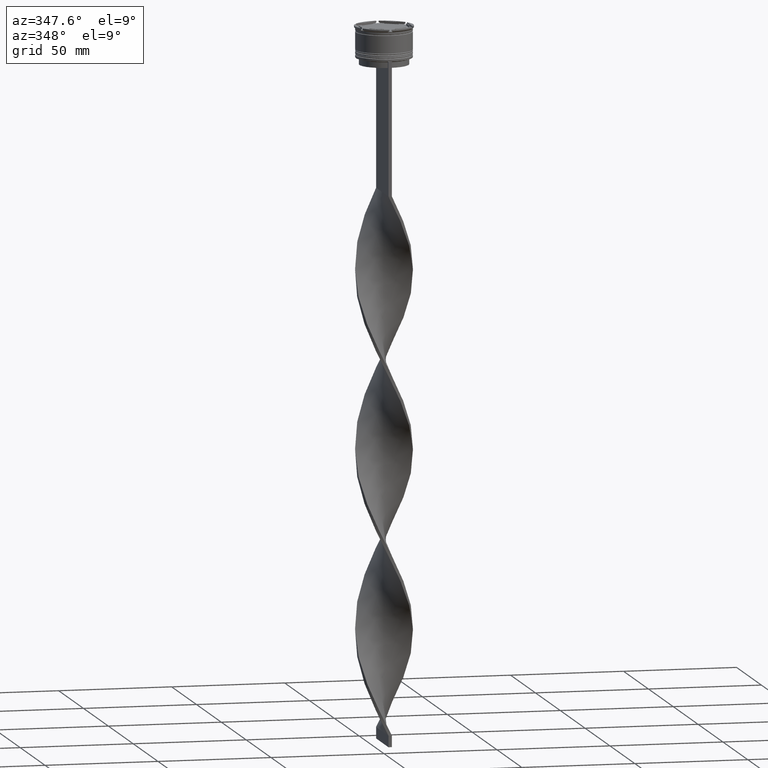
[diagram: clean part render]
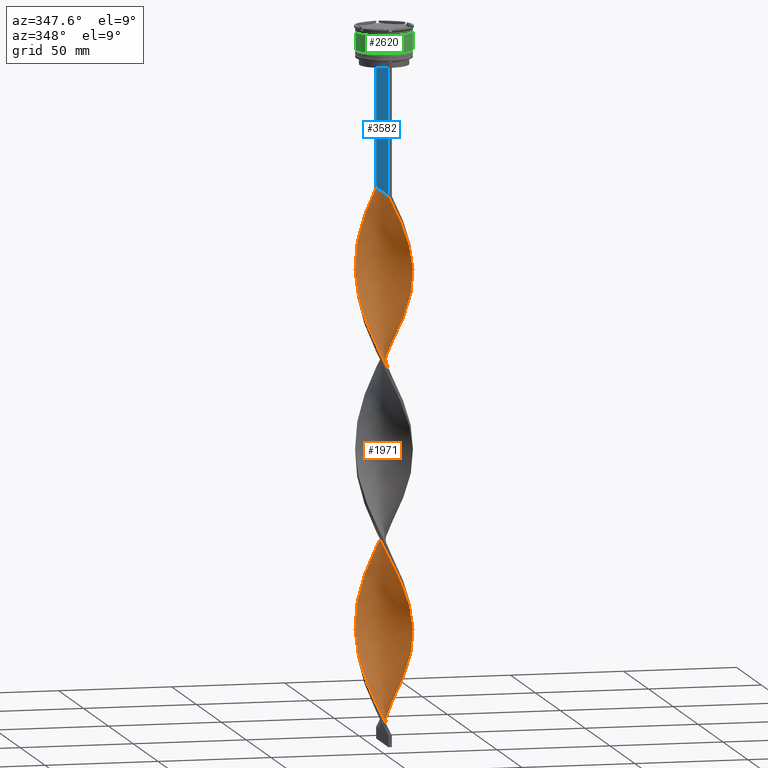
[diagram: same view with three faces highlighted in distinct colors, each labeled with its STEP entity id]
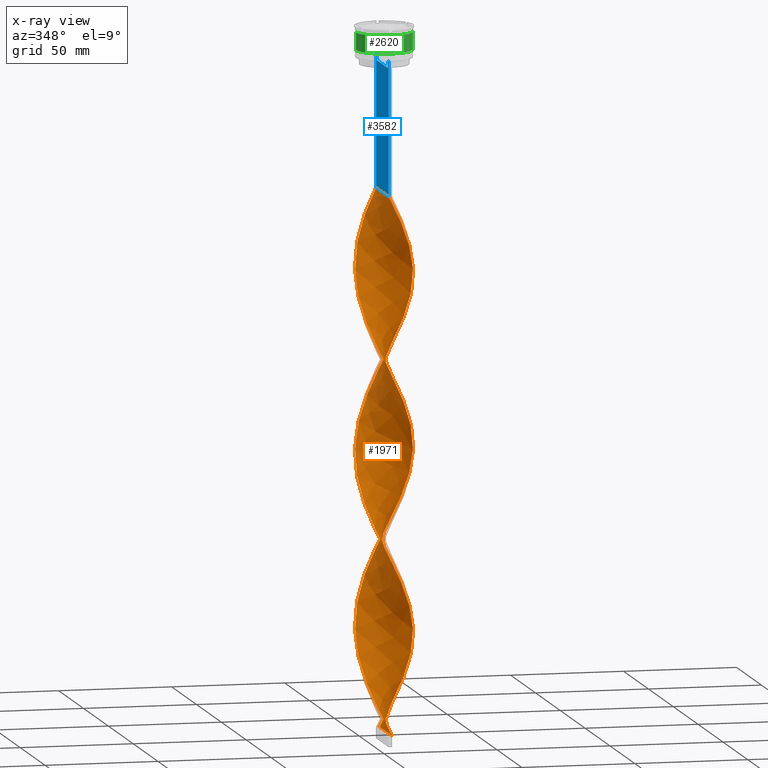
[diagram: x-ray of the same camera — body ghosted, the three highlighted faces saturated]
A machine part, auxiliary view with three faces highlighted in distinct colors.
The next image is the same camera in x-ray (body ghosted, the three faces saturated) — at least one of them is partly hidden behind the body in this view.
Their STEP definitions:

[orange] entity #1971 — the highlighted face is a freeform B-spline surface patch.
#14 = CARTESIAN_POINT ( 'NONE',  ( -10.29787303672002707, 7.192885447545552147, -177.2333333333333485 ) ) ;
#22 = CARTESIAN_POINT ( 'NONE',  ( -10.02305835011481427, -7.571135413668915071, -208.7000000000000171 ) ) ;
#24 = CARTESIAN_POINT ( 'NONE',  ( 11.47807442715925852, -5.006626353603061297, -179.1999999999999886 ) ) ;
#32 = CARTESIAN_POINT ( 'NONE',  ( -12.44097371988153533, 1.733771335307738415, -189.0333333333333314 ) ) ;
#44 = CARTESIAN_POINT ( 'NONE',  ( -0.2337713353077293388, 12.55902628011846645, -153.6333333333333826 ) ) ;
#46 = CARTESIAN_POINT ( 'NONE',  ( -2.195557779805336729, -12.36783393232032502, -145.7666666666666515 ) ) ;
#58 = CARTESIAN_POINT ( 'NONE',  ( -8.715271351328704341, -9.045873944214953610, -212.6333333333333826 ) ) ;
#68 = CARTESIAN_POINT ( 'NONE',  ( 1.733771335307732420, 12.44097371988153711, -307.0333333333333030 ) ) ;
#69 = CARTESIAN_POINT ( 'NONE',  ( -12.11996919947063134, 3.149420042465478353, -104.4666666666666828 ) ) ;
#82 = CARTESIAN_POINT ( 'NONE',  ( -7.954078399437126912, -9.671873490467486789, -214.5999999999999943 ) ) ;
#89 = CARTESIAN_POINT ( 'NONE',  ( 11.08404438769758293, 5.909970402080498175, -283.4333333333333940 ) ) ;
#103 = CARTESIAN_POINT ( 'NONE',  ( -12.11996919947063311, -3.149420042465475689, -198.8666666666666742 ) ) ;
#112 = CARTESIAN_POINT ( 'NONE',  ( -5.493386832225668925, 11.29630431837985682, -240.1666666666666856 ) ) ;
#128 = CARTESIAN_POINT ( 'NONE',  ( 12.46343010621939307, -1.214664557556534907, -187.0666666666666629 ) ) ;
#138 = CARTESIAN_POINT ( 'NONE',  ( -12.01658309743656261, -3.658622801590747819, -275.5666666666666060 ) ) ;
#152 = CARTESIAN_POINT ( 'NONE',  ( 1.733771335307729089, -12.44097371988153711, -153.6333333333333826 ) ) ;
#164 = CARTESIAN_POINT ( 'NONE',  ( 12.44097371988153711, -1.733771335307731531, -267.6999999999999318 ) ) ;
#165 = CARTESIAN_POINT ( 'NONE',  ( -11.08404438769758116, 5.909970402080499952, -255.9000000000000625 ) ) ;
#175 = CARTESIAN_POINT ( 'NONE',  ( 4.576004816908206152, -11.65644370790820972, -159.5333333333333314 ) ) ;
#184 = CARTESIAN_POINT ( 'NONE',  ( -7.571135413668912406, -10.02305835011481605, -291.3000000000000682 ) ) ;
#199 = CARTESIAN_POINT ( 'NONE',  ( -1.733771335307730643, 12.44097371988153711, -74.96666666666668277 ) ) ;
#208 = CARTESIAN_POINT ( 'NONE',  ( 10.29787303672002707, 7.192885447545548594, -204.7666666666666799 ) ) ;
#224 = CARTESIAN_POINT ( 'NONE',  ( -5.493386832225668925, 11.29630431837985682, -82.83333333333335702 ) ) ;
#246 = CARTESIAN_POINT ( 'NONE',  ( -12.46343010621939484, 1.214664557556533353, -265.7333333333333485 ) ) ;
#252 = CARTESIAN_POINT ( 'NONE',  ( 12.50000000000000000, -0.7500000000000005551, -112.3333333333333428 ) ) ;
#259 = CARTESIAN_POINT ( 'NONE',  ( 3.149420042465477465, -12.11996919947063134, -80.86666666666667425 ) ) ;
#264 = CARTESIAN_POINT ( 'NONE',  ( -11.87210446662093588, 4.103282305125623530, -259.8333333333334281 ) ) ;
#273 = CARTESIAN_POINT ( 'NONE',  ( -9.045873944214955387, 8.715271351328704341, -173.3000000000000114 ) ) ;
#281 = CARTESIAN_POINT ( 'NONE',  ( 2.195557779805334953, -12.36783393232032502, -78.90000000000001990 ) ) ;
#287 = CARTESIAN_POINT ( 'NONE',  ( 12.44097371988153711, 1.733771335307733974, -192.9666666666666970 ) ) ;
#293 = CARTESIAN_POINT ( 'NONE',  ( 0.2337713353077308653, -12.55902628011846645, -74.96666666666668277 ) ) ;
#303 = CARTESIAN_POINT ( 'NONE',  ( 7.192885447545555699, 10.29787303672002174, -137.9000000000000625 ) ) ;
#309 = CARTESIAN_POINT ( 'NONE',  ( 0.7499999999999983347, -12.50000000000000000, -309.0000000000000000 ) ) ;
#320 = CARTESIAN_POINT ( 'NONE',  ( 5.006626353603059520, -11.47807442715926030, -242.1333333333333258 ) ) ;
#327 = CARTESIAN_POINT ( 'NONE',  ( -0.2337713353077325862, -12.55902628011846645, -307.0333333333333030 ) ) ;
#332 = CARTESIAN_POINT ( 'NONE',  ( 11.47807442715926030, 5.006626353603059520, -124.1333333333333400 ) ) ;
#341 = CARTESIAN_POINT ( 'NONE',  ( -8.308504678941933008, 9.369164850721755755, -171.3333333333333428 ) ) ;
#357 = CARTESIAN_POINT ( 'NONE',  ( -12.36783393232032857, -2.195557779805327847, -196.9000000000000057 ) ) ;
#365 = CARTESIAN_POINT ( 'NONE',  ( -2.195557779805333620, 12.36783393232032680, -157.5666666666666913 ) ) ;
#366 = CARTESIAN_POINT ( 'NONE',  ( -0.2337713353077325862, -12.55902628011846645, -149.7000000000000171 ) ) ;
#382 = CARTESIAN_POINT ( 'NONE',  ( 8.308504678941934785, -9.369164850721755755, -250.0000000000000000 ) ) ;
#390 = CARTESIAN_POINT ( 'NONE',  ( -12.36783393232032857, -2.195557779805327403, -196.9000000000000057 ) ) ;
#391 = CARTESIAN_POINT ( 'NONE',  ( 3.658622801590746931, -12.01658309743656261, -157.5666666666666913 ) ) ;
#402 = CARTESIAN_POINT ( 'NONE',  ( -12.22877840865904808, 2.696197068449241119, -187.0666666666666629 ) ) ;
#413 = CARTESIAN_POINT ( 'NONE',  ( 9.369164850721755755, 8.308504678941933008, -289.3333333333333144 ) ) ;
#414 = CARTESIAN_POINT ( 'NONE',  ( -3.149420042465479241, -12.11996919947063134, -143.7999999999999829 ) ) ;
#427 = CARTESIAN_POINT ( 'NONE',  ( 11.65644370790820794, -4.576004816908208817, -261.7999999999999545 ) ) ;
#438 = CARTESIAN_POINT ( 'NONE',  ( -1.214664557556534463, -12.46343010621939307, -147.7333333333333201 ) ) ;
#449 = CARTESIAN_POINT ( 'NONE',  ( -11.47807442715926030, -5.006626353603056856, -202.8000000000000114 ) ) ;
#450 = CARTESIAN_POINT ( 'NONE',  ( 0.7499999999999983347, -12.50000000000000000, -309.0000000000000000 ) ) ;
#456 = CARTESIAN_POINT ( 'NONE',  ( -6.740552907874705291, -10.55355136890619683, -135.9333333333333371 ) ) ;
#468 = CARTESIAN_POINT ( 'NONE',  ( 12.36783393232032680, -2.195557779805332288, -185.0999999999999659 ) ) ;
#473 =( BOUNDED_SURFACE ( )  B_SPLINE_SURFACE ( 1, 2, ( 
 ( #614, #293, #3387, #2779, #3113, #3053, #4137, #3409, #997, #1704, #1662, #4496, #2003, #1018, #1384, #3728, #3092, #4452, #2068, #3033, #252, #3447, #2416, #4475, #3367, #1728, #332, #637, #4411, #2732, #1362, #1298, #595, #3752, #3791, #4157, #3076, #1036, #4097, #1342, #2434, #4117, #976, #2373, #1639, #2692, #2395, #4074, #956, #2354, #3772, #273, #3471, #14, #3861, #747, #3540, #3154, #402, #32, #2863, #1110, #2820, #357, #103, #1400, #449, #1795, #4228, #4271, #3812, #58, #82, #699, #3181, #2844, #1423, #3565, #1471, #2187, #4175, #3514, #1155, #2508, #1840, #4202, #2140, #1492, #1818, #3885, #382, #2796, #768, #2163, #3225, #1084, #427, #3494, #3204, #1775, #1130, #4247, #1449, #2529, #2484, #2886, #3905, #2094, #790, #1754, #3135, #1058, #2460, #3837, #723, #2117, #4021, #3294, #864, #1588, #4003 ),
 ( #1517, #199, #2575, #2260, #836, #224, #565, #493, #890, #539, #1864, #4293, #1957, #1930, #2552, #1202, #3659, #2908, #907, #2233, #3928, #2982, #2210, #1543, #3639, #4340, #2301, #2284, #3316, #3613, #3271, #1888, #1226, #815, #2934, #3977, #3950, #520, #4362, #1180, #1612, #152, #3249, #1910, #175, #1250, #1564, #4314, #2624, #3008, #2958, #2647, #3679, #3340, #2600, #4383, #3588, #468, #128, #1656, #651, #287, #3025, #2750, #1356, #1292, #4468, #1679, #1699, #2728, #4448, #1269, #3088, #970, #4402, #2326, #3109, #1338, #672, #2349, #4424, #4132, #3744, #950, #3723, #1011, #1980, #610, #4066, #3362, #1998, #4110, #3380, #2663, #2687, #264, #2411, #3072, #246, #3786, #4091, #4040, #3701, #1632, #991, #2367, #2063, #3443, #628, #1317, #2018, #3402, #2043, #2390, #3048, #929, #3765, #589, #3424, #327, #309 ) ),
 .UNSPECIFIED., .F., .F., .F. ) 
 B_SPLINE_SURFACE_WITH_KNOTS ( ( 2, 2 ),
 ( 3, 2, 2, 2, 2, 2, 2, 2, 2, 2, 2, 2, 2, 2, 2, 2, 2, 2, 2, 2, 2, 2, 2, 2, 2, 2, 2, 2, 2, 2, 2, 2, 2, 2, 2, 2, 2, 2, 2, 2, 2, 2, 2, 2, 2, 2, 2, 2, 2, 2, 2, 2, 2, 2, 2, 2, 2, 2, 2, 2, 3 ),
 ( 0.000000000000000000, 1.000000000000000000 ),
 ( 0.000000000000000000, 0.01250000000000000069, 0.02500000000000000139, 0.03749999999999999861, 0.05000000000000000278, 0.06250000000000000000, 0.07499999999999999722, 0.08749999999999999445, 0.1000000000000000056, 0.1125000000000000028, 0.1250000000000000000, 0.1375000000000000111, 0.1499999999999999944, 0.1625000000000000056, 0.1749999999999999889, 0.1875000000000000000, 0.2000000000000000111, 0.2124999999999999944, 0.2250000000000000056, 0.2374999999999999889, 0.2500000000000000000, 0.2625000000000000111, 0.2750000000000000222, 0.2874999999999999778, 0.2999999999999999889, 0.3125000000000000000, 0.3250000000000000111, 0.3375000000000000222, 0.3499999999999999778, 0.3624999999999999889, 0.3750000000000000000, 0.3875000000000000111, 0.4000000000000000222, 0.4124999999999999778, 0.4249999999999999889, 0.4375000000000000000, 0.4500000000000000111, 0.4625000000000000222, 0.4749999999999999778, 0.4874999999999999889, 0.5000000000000000000, 0.5124999999999999556, 0.5250000000000000222, 0.5374999999999999778, 0.5500000000000000444, 0.5625000000000000000, 0.5749999999999999556, 0.5875000000000000222, 0.5999999999999999778, 0.6125000000000000444, 0.6250000000000000000, 0.6374999999999999556, 0.6500000000000000222, 0.6624999999999999778, 0.6750000000000000444, 0.6875000000000000000, 0.6999999999999999556, 0.7125000000000000222, 0.7249999999999999778, 0.7375000000000000444, 0.7500000000000000000 ),
 .UNSPECIFIED. ) 
 GEOMETRIC_REPRESENTATION_ITEM ( )  RATIONAL_B_SPLINE_SURFACE ( (
 ( 1.000000000000000000, 0.9969173337331279638, 1.000000000000000000, 0.9969173337331279638, 1.000000000000000000, 0.9969173337331279638, 1.000000000000000000, 0.9969173337331279638, 1.000000000000000000, 0.9969173337331279638, 1.000000000000000000, 0.9969173337331279638, 1.000000000000000000, 0.9969173337331279638, 1.000000000000000000, 0.9969173337331279638, 1.000000000000000000, 0.9969173337331279638, 1.000000000000000000, 0.9969173337331279638, 1.000000000000000000, 0.9969173337331279638, 1.000000000000000000, 0.9969173337331279638, 1.000000000000000000, 0.9969173337331279638, 1.000000000000000000, 0.9969173337331279638, 1.000000000000000000, 0.9969173337331279638, 1.000000000000000000, 0.9969173337331279638, 1.000000000000000000, 0.9969173337331279638, 1.000000000000000000, 0.9969173337331279638, 1.000000000000000000, 0.9969173337331279638, 1.000000000000000000, 0.9969173337331279638, 1.000000000000000000, 0.9969173337331279638, 1.000000000000000000, 0.9969173337331279638, 1.000000000000000000, 0.9969173337331279638, 1.000000000000000000, 0.9969173337331279638, 1.000000000000000000, 0.9969173337331279638, 1.000000000000000000, 0.9969173337331279638, 1.000000000000000000, 0.9969173337331279638, 1.000000000000000000, 0.9969173337331279638, 1.000000000000000000, 0.9969173337331279638, 1.000000000000000000, 0.9969173337331279638, 1.000000000000000000, 0.9969173337331279638, 1.000000000000000000, 0.9969173337331279638, 1.000000000000000000, 0.9969173337331279638, 1.000000000000000000, 0.9969173337331279638, 1.000000000000000000, 0.9969173337331279638, 1.000000000000000000, 0.9969173337331279638, 1.000000000000000000, 0.9969173337331279638, 1.000000000000000000, 0.9969173337331279638, 1.000000000000000000, 0.9969173337331279638, 1.000000000000000000, 0.9969173337331279638, 1.000000000000000000, 0.9969173337331279638, 1.000000000000000000, 0.9969173337331279638, 1.000000000000000000, 0.9969173337331279638, 1.000000000000000000, 0.9969173337331279638, 1.000000000000000000, 0.9969173337331279638, 1.000000000000000000, 0.9969173337331279638, 1.000000000000000000, 0.9969173337331279638, 1.000000000000000000, 0.9969173337331279638, 1.000000000000000000, 0.9969173337331279638, 1.000000000000000000, 0.9969173337331279638, 1.000000000000000000, 0.9969173337331279638, 1.000000000000000000, 0.9969173337331279638, 1.000000000000000000, 0.9969173337331279638, 1.000000000000000000, 0.9969173337331279638, 1.000000000000000000, 0.9969173337331279638, 1.000000000000000000, 0.9969173337331279638, 1.000000000000000000, 0.9969173337331279638, 1.000000000000000000, 0.9969173337331279638, 1.000000000000000000, 0.9969173337331279638, 1.000000000000000000, 0.9969173337331279638, 1.000000000000000000),
 ( 1.000000000000000000, 0.9969173337331279638, 1.000000000000000000, 0.9969173337331279638, 1.000000000000000000, 0.9969173337331279638, 1.000000000000000000, 0.9969173337331279638, 1.000000000000000000, 0.9969173337331279638, 1.000000000000000000, 0.9969173337331279638, 1.000000000000000000, 0.9969173337331279638, 1.000000000000000000, 0.9969173337331279638, 1.000000000000000000, 0.9969173337331279638, 1.000000000000000000, 0.9969173337331279638, 1.000000000000000000, 0.9969173337331279638, 1.000000000000000000, 0.9969173337331279638, 1.000000000000000000, 0.9969173337331279638, 1.000000000000000000, 0.9969173337331279638, 1.000000000000000000, 0.9969173337331279638, 1.000000000000000000, 0.9969173337331279638, 1.000000000000000000, 0.9969173337331279638, 1.000000000000000000, 0.9969173337331279638, 1.000000000000000000, 0.9969173337331279638, 1.000000000000000000, 0.9969173337331279638, 1.000000000000000000, 0.9969173337331279638, 1.000000000000000000, 0.9969173337331279638, 1.000000000000000000, 0.9969173337331279638, 1.000000000000000000, 0.9969173337331279638, 1.000000000000000000, 0.9969173337331279638, 1.000000000000000000, 0.9969173337331279638, 1.000000000000000000, 0.9969173337331279638, 1.000000000000000000, 0.9969173337331279638, 1.000000000000000000, 0.9969173337331279638, 1.000000000000000000, 0.9969173337331279638, 1.000000000000000000, 0.9969173337331279638, 1.000000000000000000, 0.9969173337331279638, 1.000000000000000000, 0.9969173337331279638, 1.000000000000000000, 0.9969173337331279638, 1.000000000000000000, 0.9969173337331279638, 1.000000000000000000, 0.9969173337331279638, 1.000000000000000000, 0.9969173337331279638, 1.000000000000000000, 0.9969173337331279638, 1.000000000000000000, 0.9969173337331279638, 1.000000000000000000, 0.9969173337331279638, 1.000000000000000000, 0.9969173337331279638, 1.000000000000000000, 0.9969173337331279638, 1.000000000000000000, 0.9969173337331279638, 1.000000000000000000, 0.9969173337331279638, 1.000000000000000000, 0.9969173337331279638, 1.000000000000000000, 0.9969173337331279638, 1.000000000000000000, 0.9969173337331279638, 1.000000000000000000, 0.9969173337331279638, 1.000000000000000000, 0.9969173337331279638, 1.000000000000000000, 0.9969173337331279638, 1.000000000000000000, 0.9969173337331279638, 1.000000000000000000, 0.9969173337331279638, 1.000000000000000000, 0.9969173337331279638, 1.000000000000000000, 0.9969173337331279638, 1.000000000000000000, 0.9969173337331279638, 1.000000000000000000, 0.9969173337331279638, 1.000000000000000000, 0.9969173337331279638, 1.000000000000000000, 0.9969173337331279638, 1.000000000000000000, 0.9969173337331279638, 1.000000000000000000, 0.9969173337331279638, 1.000000000000000000) ) ) 
 REPRESENTATION_ITEM ( '' )  SURFACE ( )  );
#476 = CARTESIAN_POINT ( 'NONE',  ( 10.55355136890619860, 6.740552907874702626, -285.3999999999999773 ) ) ;
#478 = CARTESIAN_POINT ( 'NONE',  ( -10.02305835011481427, 7.571135413668910630, -251.9666666666666686 ) ) ;
#493 = CARTESIAN_POINT ( 'NONE',  ( -7.192885447545554811, 10.29787303672002530, -86.76666666666666572 ) ) ;
#494 = CARTESIAN_POINT ( 'NONE',  ( 0.7500000000000003331, 4.166666666666667851, -309.0000000000000000 ) ) ;
#496 = VERTEX_POINT ( 'NONE', #4200 ) ;
#503 = CARTESIAN_POINT ( 'NONE',  ( -1.733771335307730643, 12.44097371988153711, -232.3000000000000398 ) ) ;
#520 = CARTESIAN_POINT ( 'NONE',  ( -2.195557779805336285, -12.36783393232032502, -145.7666666666666515 ) ) ;
#529 = CARTESIAN_POINT ( 'NONE',  ( -9.045873944214960716, -8.715271351328697236, -287.3666666666667311 ) ) ;
#539 = CARTESIAN_POINT ( 'NONE',  ( -8.715271351328697236, 9.045873944214960716, -90.70000000000001705 ) ) ;
#550 = CARTESIAN_POINT ( 'NONE',  ( -8.308504678941934785, -9.369164850721753979, -289.3333333333333144 ) ) ;
#565 = CARTESIAN_POINT ( 'NONE',  ( -6.343136139885610092, 10.79708867754994017, -84.80000000000001137 ) ) ;
#575 = CARTESIAN_POINT ( 'NONE',  ( -2.696197068449239342, 12.22877840865904986, -234.2666666666666515 ) ) ;
#579 = CARTESIAN_POINT ( 'NONE',  ( 1.214664557556532909, -12.46343010621939484, -76.93333333333333712 ) ) ;
#589 = CARTESIAN_POINT ( 'NONE',  ( -2.195557779805336285, -12.36783393232032502, -303.0999999999999659 ) ) ;
#595 = CARTESIAN_POINT ( 'NONE',  ( 7.954078399437126023, 9.671873490467488566, -135.9333333333333371 ) ) ;
#601 = CARTESIAN_POINT ( 'NONE',  ( 8.715271351328700788, 9.045873944214958939, -133.9666666666666686 ) ) ;
#610 = CARTESIAN_POINT ( 'NONE',  ( -7.192885447545554811, 10.29787303672002530, -244.0999999999999659 ) ) ;
#614 = CARTESIAN_POINT ( 'NONE',  ( -0.7499999999999997780, -12.50000000000000000, -73.00000000000001421 ) ) ;
#628 = CARTESIAN_POINT ( 'NONE',  ( -9.671873490467490342, -7.954078399437124247, -285.3999999999999773 ) ) ;
#637 = CARTESIAN_POINT ( 'NONE',  ( 11.08404438769758293, 5.909970402080497287, -126.1000000000000369 ) ) ;
#651 = CARTESIAN_POINT ( 'NONE',  ( 12.50000000000000000, 0.7499999999999975575, -191.0000000000000000 ) ) ;
#660 = EDGE_CURVE ( 'NONE', #2328, #2130, #2465, .T. ) ;
#667 = CARTESIAN_POINT ( 'NONE',  ( 4.576004816908209705, 11.65644370790820794, -143.7999999999999829 ) ) ;
#672 = CARTESIAN_POINT ( 'NONE',  ( 1.214664557556535796, 12.46343010621939307, -226.3999999999999773 ) ) ;
#686 = CARTESIAN_POINT ( 'NONE',  ( -11.87210446662093410, -4.103282305125625307, -200.8333333333333428 ) ) ;
#699 = CARTESIAN_POINT ( 'NONE',  ( -7.192885447545553035, -10.29787303672002530, -216.5666666666666629 ) ) ;
#706 = CARTESIAN_POINT ( 'NONE',  ( -3.658622801590746043, -12.01658309743656261, -224.4333333333333371 ) ) ;
#708 = CARTESIAN_POINT ( 'NONE',  ( -4.576004816908207928, 11.65644370790820794, -80.86666666666667425 ) ) ;
#716 = CARTESIAN_POINT ( 'NONE',  ( 0.7500000000000013323, 12.50000000000000000, -309.0000000000000000 ) ) ;
#723 = CARTESIAN_POINT ( 'NONE',  ( 6.343136139885611868, 10.79708867754993840, -297.2000000000000455 ) ) ;
#732 = CARTESIAN_POINT ( 'NONE',  ( -7.192885447545552147, -10.29787303672002352, -216.5666666666666629 ) ) ;
#734 = CARTESIAN_POINT ( 'NONE',  ( -11.65644370790820972, -4.576004816908207040, -120.2000000000000028 ) ) ;
#747 = CARTESIAN_POINT ( 'NONE',  ( -11.29630431837985505, 5.493386832225676031, -181.1666666666667140 ) ) ;
#755 = CARTESIAN_POINT ( 'NONE',  ( -12.50000000000000000, 0.7500000000000021094, -191.0000000000000000 ) ) ;
#756 = CARTESIAN_POINT ( 'NONE',  ( -8.308504678941934785, -9.369164850721753979, -132.0000000000000000 ) ) ;
#768 = CARTESIAN_POINT ( 'NONE',  ( 9.671873490467490342, -7.954078399437124247, -253.9333333333333371 ) ) ;
#779 = CARTESIAN_POINT ( 'NONE',  ( -12.44097371988153711, -1.733771335307729755, -114.3000000000000256 ) ) ;
#790 = CARTESIAN_POINT ( 'NONE',  ( 10.55355136890619860, 6.740552907874702626, -285.3999999999999773 ) ) ;
#791 = CARTESIAN_POINT ( 'NONE',  ( 0.7500000000000013323, 12.50000000000000000, -309.0000000000000000 ) ) ;
#803 = CARTESIAN_POINT ( 'NONE',  ( -6.343136139885610092, 10.79708867754994017, -84.80000000000001137 ) ) ;
#815 = CARTESIAN_POINT ( 'NONE',  ( -5.909970402080499063, -11.08404438769758116, -137.9000000000000625 ) ) ;
#817 = CARTESIAN_POINT ( 'NONE',  ( -0.7499999999999997780, -12.50000000000000000, -73.00000000000001421 ) ) ;
#823 = CARTESIAN_POINT ( 'NONE',  ( 6.343136139885611868, 10.79708867754993840, -297.2000000000000455 ) ) ;
#824 = CARTESIAN_POINT ( 'NONE',  ( 9.671873490467490342, 7.954078399437122471, -206.7333333333333201 ) ) ;
#836 = CARTESIAN_POINT ( 'NONE',  ( -4.576004816908207928, 11.65644370790820794, -80.86666666666667425 ) ) ;
#845 = CARTESIAN_POINT ( 'NONE',  ( 11.65644370790820794, -4.576004816908208817, -261.7999999999999545 ) ) ;
#847 = CARTESIAN_POINT ( 'NONE',  ( 6.740552907874707067, 10.55355136890619860, -214.5999999999999943 ) ) ;
#859 = EDGE_CURVE ( 'NONE', #2328, #4387, #2554, .T. ) ;
#864 = CARTESIAN_POINT ( 'NONE',  ( 2.696197068449240231, 12.22877840865904808, -305.0666666666666629 ) ) ;
#872 = CARTESIAN_POINT ( 'NONE',  ( 2.696197068449240231, 12.22877840865904808, -305.0666666666666629 ) ) ;
#874 = CARTESIAN_POINT ( 'NONE',  ( -12.44097371988153711, -1.733771335307729755, -271.6333333333332689 ) ) ;
#889 = EDGE_CURVE ( 'NONE', #2130, #496, #2211, .T. ) ;
#890 = CARTESIAN_POINT ( 'NONE',  ( -7.954078399437124247, 9.671873490467490342, -88.73333333333334849 ) ) ;
#898 = CARTESIAN_POINT ( 'NONE',  ( -2.195557779805336729, -12.36783393232032502, -303.0999999999999659 ) ) ;
#901 = CARTESIAN_POINT ( 'NONE',  ( 12.55902628011846645, 0.2337713353077299772, -114.3000000000000256 ) ) ;
#907 = CARTESIAN_POINT ( 'NONE',  ( -12.46343010621939484, 1.214664557556533353, -108.3999999999999915 ) ) ;
#917 = CARTESIAN_POINT ( 'NONE',  ( -12.50000000000000000, -0.7499999999999990008, -269.6666666666666856 ) ) ;
#929 = CARTESIAN_POINT ( 'NONE',  ( -4.103282305125623530, -11.87210446662093588, -299.1666666666666856 ) ) ;
#942 = CARTESIAN_POINT ( 'NONE',  ( 10.55355136890619860, 6.740552907874702626, -128.0666666666666629 ) ) ;
#950 = CARTESIAN_POINT ( 'NONE',  ( -3.658622801590747819, 12.01658309743656083, -236.2333333333333769 ) ) ;
#956 = CARTESIAN_POINT ( 'NONE',  ( -6.740552907874702626, 10.55355136890619860, -167.4000000000000057 ) ) ;
#970 = CARTESIAN_POINT ( 'NONE',  ( 5.909970402080495511, 11.08404438769758293, -216.5666666666666629 ) ) ;
#976 = CARTESIAN_POINT ( 'NONE',  ( -1.214664557556531133, 12.46343010621939484, -155.6000000000000227 ) ) ;
#991 = CARTESIAN_POINT ( 'NONE',  ( -11.65644370790820972, -4.576004816908207040, -277.5333333333333030 ) ) ;
#997 = CARTESIAN_POINT ( 'NONE',  ( 6.740552907874703514, -10.55355136890619860, -88.73333333333334849 ) ) ;
#1004 = CARTESIAN_POINT ( 'NONE',  ( 8.308504678941934785, -9.369164850721755755, -250.0000000000000000 ) ) ;
#1011 = CARTESIAN_POINT ( 'NONE',  ( -5.493386832225668925, 11.29630431837985682, -240.1666666666667140 ) ) ;
#1018 = CARTESIAN_POINT ( 'NONE',  ( 10.29787303672002352, -7.192885447545556588, -98.56666666666669130 ) ) ;
#1026 = CARTESIAN_POINT ( 'NONE',  ( -1.214664557556531133, 12.46343010621939484, -155.6000000000000227 ) ) ;
#1036 = CARTESIAN_POINT ( 'NONE',  ( 3.658622801590749596, 12.01658309743656083, -145.7666666666666515 ) ) ;
#1045 = CARTESIAN_POINT ( 'NONE',  ( -10.55355136890619860, -6.740552907874700850, -206.7333333333333201 ) ) ;
#1046 = CARTESIAN_POINT ( 'NONE',  ( 10.55355136890619683, -6.740552907874705291, -175.2666666666666799 ) ) ;
#1058 = CARTESIAN_POINT ( 'NONE',  ( 8.715271351328700788, 9.045873944214958939, -291.3000000000000682 ) ) ;
#1067 = CARTESIAN_POINT ( 'NONE',  ( -5.493386832225676919, -11.29630431837985505, -220.5000000000000284 ) ) ;
#1068 = CARTESIAN_POINT ( 'NONE',  ( -3.658622801590747819, 12.01658309743656083, -78.90000000000001990 ) ) ;
#1084 = CARTESIAN_POINT ( 'NONE',  ( 11.29630431837985682, -5.493386832225669814, -259.8333333333334281 ) ) ;
#1095 = CARTESIAN_POINT ( 'NONE',  ( 2.195557779805334953, -12.36783393232032502, -236.2333333333333485 ) ) ;
#1096 = CARTESIAN_POINT ( 'NONE',  ( 6.343136139885608316, -10.79708867754994017, -163.4666666666666401 ) ) ;
#1110 = CARTESIAN_POINT ( 'NONE',  ( -12.55902628011846645, -0.2337713353077342793, -192.9666666666666970 ) ) ;
#1118 = CARTESIAN_POINT ( 'NONE',  ( 11.47807442715926030, 5.006626353603059520, -281.4666666666666401 ) ) ;
#1119 = CARTESIAN_POINT ( 'NONE',  ( -10.02305835011481427, 7.571135413668910630, -94.63333333333335418 ) ) ;
#1130 = CARTESIAN_POINT ( 'NONE',  ( 12.50000000000000000, -0.7500000000000005551, -269.6666666666666856 ) ) ;
#1155 = CARTESIAN_POINT ( 'NONE',  ( 1.214664557556532909, -12.46343010621939484, -234.2666666666666515 ) ) ;
#1168 = CARTESIAN_POINT ( 'NONE',  ( -8.715271351328697236, 9.045873944214960716, -248.0333333333333599 ) ) ;
#1180 = CARTESIAN_POINT ( 'NONE',  ( -0.2337713353077325862, -12.55902628011846645, -149.7000000000000455 ) ) ;
#1190 = CARTESIAN_POINT ( 'NONE',  ( 12.44097371988153711, 1.733771335307734196, -192.9666666666666970 ) ) ;
#1202 = CARTESIAN_POINT ( 'NONE',  ( -11.87210446662093588, 4.103282305125623530, -102.5000000000000000 ) ) ;
#1212 = CARTESIAN_POINT ( 'NONE',  ( -11.47807442715925852, 5.006626353603060409, -257.8666666666666742 ) ) ;
#1226 = CARTESIAN_POINT ( 'NONE',  ( -6.740552907874705291, -10.55355136890619683, -135.9333333333333371 ) ) ;
#1235 = CARTESIAN_POINT ( 'NONE',  ( -5.909970402080499952, -11.08404438769758116, -295.2333333333333485 ) ) ;
#1250 = CARTESIAN_POINT ( 'NONE',  ( 5.493386832225667149, -11.29630431837985860, -161.5000000000000000 ) ) ;
#1259 = CARTESIAN_POINT ( 'NONE',  ( -10.79708867754994017, -6.343136139885610092, -281.4666666666666401 ) ) ;
#1262 = CARTESIAN_POINT ( 'NONE',  ( 12.22877840865904986, -2.696197068449239787, -108.3999999999999915 ) ) ;
#1269 = CARTESIAN_POINT ( 'NONE',  ( 7.571135413668917735, 10.02305835011481072, -212.6333333333333826 ) ) ;
#1284 = CARTESIAN_POINT ( 'NONE',  ( 5.909970402080498175, -11.08404438769758293, -86.76666666666666572 ) ) ;
#1292 = CARTESIAN_POINT ( 'NONE',  ( 11.29630431837985505, 5.493386832225671590, -200.8333333333333428 ) ) ;
#1298 = CARTESIAN_POINT ( 'NONE',  ( 8.715271351328700788, 9.045873944214958939, -133.9666666666666686 ) ) ;
#1308 = CARTESIAN_POINT ( 'NONE',  ( 10.79708867754993840, -6.343136139885610980, -100.5333333333333314 ) ) ;
#1317 = CARTESIAN_POINT ( 'NONE',  ( -9.045873944214960716, -8.715271351328697236, -287.3666666666667311 ) ) ;
#1322 = ORIENTED_EDGE ( 'NONE', *, *, #889, .F. ) ;
#1330 = CARTESIAN_POINT ( 'NONE',  ( 11.29630431837985682, -5.493386832225669814, -102.5000000000000142 ) ) ;
#1338 = CARTESIAN_POINT ( 'NONE',  ( 2.195557779805333176, 12.36783393232032680, -224.4333333333333655 ) ) ;
#1342 = CARTESIAN_POINT ( 'NONE',  ( 1.733771335307732420, 12.44097371988153711, -149.7000000000000455 ) ) ;
#1348 = CARTESIAN_POINT ( 'NONE',  ( 4.103282305125622642, -11.87210446662093588, -240.1666666666666856 ) ) ;
#1356 = CARTESIAN_POINT ( 'NONE',  ( 11.65644370790820972, 4.576004816908206152, -198.8666666666666742 ) ) ;
#1362 = CARTESIAN_POINT ( 'NONE',  ( 9.369164850721755755, 8.308504678941933008, -132.0000000000000000 ) ) ;
#1367 = CARTESIAN_POINT ( 'NONE',  ( -3.149420042465476133, 12.11996919947063311, -159.5333333333333314 ) ) ;
#1384 = CARTESIAN_POINT ( 'NONE',  ( 10.79708867754993840, -6.343136139885610980, -100.5333333333333314 ) ) ;
#1391 = CARTESIAN_POINT ( 'NONE',  ( -7.571135413668910630, 10.02305835011481605, -169.3666666666667027 ) ) ;
#1392 = CARTESIAN_POINT ( 'NONE',  ( 8.715271351328699012, -9.045873944214962492, -169.3666666666667027 ) ) ;
#1400 = CARTESIAN_POINT ( 'NONE',  ( -11.87210446662093410, -4.103282305125625307, -200.8333333333333428 ) ) ;
#1409 = CARTESIAN_POINT ( 'NONE',  ( 5.493386832225669814, 11.29630431837985682, -141.8333333333333428 ) ) ;
#1410 = CARTESIAN_POINT ( 'NONE',  ( -12.50000000000000000, -0.7499999999999990008, -112.3333333333333428 ) ) ;
#1423 = CARTESIAN_POINT ( 'NONE',  ( -4.576004816908211481, -11.65644370790820794, -222.4666666666666686 ) ) ;
#1434 = CARTESIAN_POINT ( 'NONE',  ( -2.696197068449242007, -12.22877840865904808, -226.3999999999999773 ) ) ;
#1449 = CARTESIAN_POINT ( 'NONE',  ( 12.46343010621939484, 1.214664557556532021, -273.5999999999999659 ) ) ;
#1460 = CARTESIAN_POINT ( 'NONE',  ( -7.571135413668912406, -10.02305835011481605, -133.9666666666666686 ) ) ;
#1471 = CARTESIAN_POINT ( 'NONE',  ( -2.696197068449242007, -12.22877840865904808, -226.3999999999999773 ) ) ;
#1479 = CARTESIAN_POINT ( 'NONE',  ( 7.954078399437126023, 9.671873490467488566, -293.2666666666666515 ) ) ;
#1480 = CARTESIAN_POINT ( 'NONE',  ( 4.576004816908206152, -11.65644370790820972, -159.5333333333333314 ) ) ;
#1492 = CARTESIAN_POINT ( 'NONE',  ( 5.909970402080497287, -11.08404438769758293, -244.0999999999999659 ) ) ;
#1503 = CARTESIAN_POINT ( 'NONE',  ( 4.103282305125630636, 11.87210446662093410, -220.5000000000000284 ) ) ;
#1517 = CARTESIAN_POINT ( 'NONE',  ( -0.7499999999999997780, 12.50000000000000000, -73.00000000000001421 ) ) ;
#1530 = CARTESIAN_POINT ( 'NONE',  ( -9.671873490467490342, -7.954078399437124247, -285.3999999999999773 ) ) ;
#1543 = CARTESIAN_POINT ( 'NONE',  ( -12.01658309743656261, -3.658622801590747819, -118.2333333333333343 ) ) ;
#1554 = CARTESIAN_POINT ( 'NONE',  ( -11.87210446662093588, 4.103282305125623530, -259.8333333333334281 ) ) ;
#1564 = CARTESIAN_POINT ( 'NONE',  ( 6.343136139885608316, -10.79708867754994017, -163.4666666666666401 ) ) ;
#1574 = CARTESIAN_POINT ( 'NONE',  ( 5.909970402080496399, 11.08404438769758293, -216.5666666666666629 ) ) ;
#1588 = CARTESIAN_POINT ( 'NONE',  ( 1.733771335307732420, 12.44097371988153711, -307.0333333333333030 ) ) ;
#1597 = CARTESIAN_POINT ( 'NONE',  ( 12.36783393232032680, -2.195557779805331844, -185.0999999999999943 ) ) ;
#1612 = CARTESIAN_POINT ( 'NONE',  ( 0.7499999999999983347, -12.50000000000000000, -151.6666666666666856 ) ) ;
#1623 = CARTESIAN_POINT ( 'NONE',  ( 11.65644370790820794, -4.576004816908208817, -104.4666666666666828 ) ) ;
#1632 = CARTESIAN_POINT ( 'NONE',  ( -12.01658309743656261, -3.658622801590747819, -275.5666666666666060 ) ) ;
#1639 = CARTESIAN_POINT ( 'NONE',  ( -3.149420042465476133, 12.11996919947063311, -159.5333333333333314 ) ) ;
#1648 = CARTESIAN_POINT ( 'NONE',  ( 12.01658309743656083, -3.658622801590749152, -106.4333333333333513 ) ) ;
#1656 = CARTESIAN_POINT ( 'NONE',  ( 12.55902628011846822, -0.2337713353077386647, -189.0333333333333314 ) ) ;
#1662 = CARTESIAN_POINT ( 'NONE',  ( 8.308504678941934785, -9.369164850721755755, -92.66666666666667140 ) ) ;
#1670 = CARTESIAN_POINT ( 'NONE',  ( 7.571135413668910630, -10.02305835011481427, -90.70000000000001705 ) ) ;
#1679 = CARTESIAN_POINT ( 'NONE',  ( 10.29787303672002885, 7.192885447545549482, -204.7666666666666799 ) ) ;
#1693 = CARTESIAN_POINT ( 'NONE',  ( 1.733771335307732420, 12.44097371988153711, -149.7000000000000171 ) ) ;
#1699 = CARTESIAN_POINT ( 'NONE',  ( 9.671873490467490342, 7.954078399437122471, -206.7333333333333201 ) ) ;
#1704 = CARTESIAN_POINT ( 'NONE',  ( 7.571135413668909742, -10.02305835011481427, -90.70000000000001705 ) ) ;
#1711 = CARTESIAN_POINT ( 'NONE',  ( 9.671873490467490342, -7.954078399437124247, -253.9333333333333371 ) ) ;
#1728 = CARTESIAN_POINT ( 'NONE',  ( 11.87210446662093588, 4.103282305125621754, -122.1666666666666998 ) ) ;
#1737 = CARTESIAN_POINT ( 'NONE',  ( -9.045873944214955387, 8.715271351328704341, -173.3000000000000114 ) ) ;
#1754 = CARTESIAN_POINT ( 'NONE',  ( 10.02305835011481427, 7.571135413668909742, -287.3666666666667311 ) ) ;
#1762 = CARTESIAN_POINT ( 'NONE',  ( -11.47807442715926030, -5.006626353603056856, -202.8000000000000114 ) ) ;
#1764 = CARTESIAN_POINT ( 'NONE',  ( -1.733771335307730643, 12.44097371988153711, -74.96666666666668277 ) ) ;
#1775 = CARTESIAN_POINT ( 'NONE',  ( 12.44097371988153711, -1.733771335307731531, -267.6999999999999318 ) ) ;
#1783 = CARTESIAN_POINT ( 'NONE',  ( -4.576004816908211481, -11.65644370790820794, -222.4666666666666686 ) ) ;
#1795 = CARTESIAN_POINT ( 'NONE',  ( -11.08404438769758649, -5.909970402080492846, -204.7666666666666799 ) ) ;
#1807 = CARTESIAN_POINT ( 'NONE',  ( 12.22877840865904986, -2.696197068449239787, -265.7333333333333485 ) ) ;
#1818 = CARTESIAN_POINT ( 'NONE',  ( 6.740552907874703514, -10.55355136890619860, -246.0666666666666629 ) ) ;
#1827 = CARTESIAN_POINT ( 'NONE',  ( 12.55902628011846645, 0.2337713353077299772, -271.6333333333332689 ) ) ;
#1840 = CARTESIAN_POINT ( 'NONE',  ( 3.149420042465477465, -12.11996919947063134, -238.1999999999999886 ) ) ;
#1848 = CARTESIAN_POINT ( 'NONE',  ( 3.658622801590749152, 12.01658309743656083, -303.0999999999999659 ) ) ;
#1849 = CARTESIAN_POINT ( 'NONE',  ( 1.733771335307729089, -12.44097371988153711, -153.6333333333333826 ) ) ;
#1864 = CARTESIAN_POINT ( 'NONE',  ( -9.369164850721755755, 8.308504678941934785, -92.66666666666667140 ) ) ;
#1874 = CARTESIAN_POINT ( 'NONE',  ( 12.01658309743656083, -3.658622801590749152, -263.7666666666667084 ) ) ;
#1875 = CARTESIAN_POINT ( 'NONE',  ( -12.55902628011846645, 0.2337713353077317258, -267.6999999999999318 ) ) ;
#1888 = CARTESIAN_POINT ( 'NONE',  ( -7.571135413668911518, -10.02305835011481605, -133.9666666666666686 ) ) ;
#1889 = CARTESIAN_POINT ( 'NONE',  ( 0.7499999999999992228, -4.166666666666667851, -309.0000000000000000 ) ) ;
#1898 = CARTESIAN_POINT ( 'NONE',  ( -7.954078399437124247, 9.671873490467490342, -246.0666666666666629 ) ) ;
#1910 = CARTESIAN_POINT ( 'NONE',  ( 3.658622801590746931, -12.01658309743656261, -157.5666666666666629 ) ) ;
#1919 = CARTESIAN_POINT ( 'NONE',  ( 0.2337713353077395251, 12.55902628011846822, -228.3666666666666742 ) ) ;
#1930 = CARTESIAN_POINT ( 'NONE',  ( -11.08404438769758116, 5.909970402080499063, -98.56666666666669130 ) ) ;
#1941 = CARTESIAN_POINT ( 'NONE',  ( 12.01658309743656439, 3.658622801590740714, -196.9000000000000057 ) ) ;
#1948 = CARTESIAN_POINT ( 'NONE',  ( 12.36783393232032680, 2.195557779805334508, -118.2333333333333485 ) ) ;
#1957 = CARTESIAN_POINT ( 'NONE',  ( -10.55355136890619860, 6.740552907874703514, -96.60000000000000853 ) ) ;
#1965 = CARTESIAN_POINT ( 'NONE',  ( -6.343136139885610092, 10.79708867754994017, -242.1333333333333258 ) ) ;
#1971 = ADVANCED_FACE ( 'NONE', ( #2755 ), #473, .T. ) ;
#1980 = CARTESIAN_POINT ( 'NONE',  ( -6.343136139885610092, 10.79708867754994017, -242.1333333333333258 ) ) ;
#1989 = CARTESIAN_POINT ( 'NONE',  ( 8.308504678941934785, -9.369164850721755755, -92.66666666666667140 ) ) ;
#1998 = CARTESIAN_POINT ( 'NONE',  ( -9.369164850721755755, 8.308504678941934785, -250.0000000000000000 ) ) ;
#2003 = CARTESIAN_POINT ( 'NONE',  ( 9.671873490467490342, -7.954078399437124247, -96.60000000000000853 ) ) ;
#2018 = CARTESIAN_POINT ( 'NONE',  ( -8.308504678941934785, -9.369164850721753979, -289.3333333333333144 ) ) ;
#2043 = CARTESIAN_POINT ( 'NONE',  ( -6.740552907874705291, -10.55355136890619683, -293.2666666666666515 ) ) ;
#2055 = CARTESIAN_POINT ( 'NONE',  ( -0.7499999999999997780, -12.50000000000000000, -230.3333333333333428 ) ) ;
#2063 = CARTESIAN_POINT ( 'NONE',  ( -10.79708867754994017, -6.343136139885610092, -281.4666666666666401 ) ) ;
#2068 = CARTESIAN_POINT ( 'NONE',  ( 12.22877840865904986, -2.696197068449239787, -108.3999999999999915 ) ) ;
#2074 = CARTESIAN_POINT ( 'NONE',  ( -7.954078399437126912, -9.671873490467486789, -214.5999999999999943 ) ) ;
#2094 = CARTESIAN_POINT ( 'NONE',  ( 11.08404438769758293, 5.909970402080497287, -283.4333333333333940 ) ) ;
#2100 = CARTESIAN_POINT ( 'NONE',  ( -1.733771335307739303, -12.44097371988153533, -228.3666666666666742 ) ) ;
#2101 = CARTESIAN_POINT ( 'NONE',  ( -11.29630431837985682, -5.493386832225668037, -122.1666666666666856 ) ) ;
#2117 = CARTESIAN_POINT ( 'NONE',  ( 5.493386832225669814, 11.29630431837985682, -299.1666666666666856 ) ) ;
#2125 = CARTESIAN_POINT ( 'NONE',  ( -5.909970402080496399, 11.08404438769758293, -165.4333333333333371 ) ) ;
#2126 = CARTESIAN_POINT ( 'NONE',  ( -11.47807442715925852, 5.006626353603060409, -100.5333333333333314 ) ) ;
#2130 = VERTEX_POINT ( 'NONE', #716 ) ;
#2140 = CARTESIAN_POINT ( 'NONE',  ( 5.006626353603059520, -11.47807442715926030, -242.1333333333333258 ) ) ;
#2148 = CARTESIAN_POINT ( 'NONE',  ( -12.22877840865904808, 2.696197068449241119, -187.0666666666666629 ) ) ;
#2149 = CARTESIAN_POINT ( 'NONE',  ( -5.909970402080499952, -11.08404438769758116, -137.9000000000000625 ) ) ;
#2163 = CARTESIAN_POINT ( 'NONE',  ( 10.29787303672002352, -7.192885447545556588, -255.9000000000000909 ) ) ;
#2173 = CARTESIAN_POINT ( 'NONE',  ( 8.715271351328700788, 9.045873944214958939, -291.3000000000000682 ) ) ;
#2174 = CARTESIAN_POINT ( 'NONE',  ( -4.103282305125623530, -11.87210446662093588, -141.8333333333333428 ) ) ;
#2187 = CARTESIAN_POINT ( 'NONE',  ( -1.733771335307739303, -12.44097371988153533, -228.3666666666666458 ) ) ;
#2199 = CARTESIAN_POINT ( 'NONE',  ( 7.192885447545552147, -10.29787303672002352, -165.4333333333333371 ) ) ;
#2207 = CARTESIAN_POINT ( 'NONE',  ( -0.7499999999999997780, -12.50000000000000000, -73.00000000000001421 ) ) ;
#2210 = CARTESIAN_POINT ( 'NONE',  ( -12.22877840865904986, -2.696197068449238454, -116.2666666666666657 ) ) ;
#2211 = B_SPLINE_CURVE_WITH_KNOTS ( 'NONE', 3,
 ( #791, #494, #1889, #450 ),
 .UNSPECIFIED., .F., .F.,
 ( 4, 4 ),
 ( 0.000000000000000000, 1.000000000000000000 ),
 .UNSPECIFIED. ) ;
#2220 = CARTESIAN_POINT ( 'NONE',  ( 7.571135413668918623, 10.02305835011481072, -212.6333333333333826 ) ) ;
#2233 = CARTESIAN_POINT ( 'NONE',  ( -12.55902628011846645, 0.2337713353077317258, -110.3666666666666600 ) ) ;
#2244 = CARTESIAN_POINT ( 'NONE',  ( 7.192885447545555699, 10.29787303672002174, -295.2333333333333485 ) ) ;
#2245 = CARTESIAN_POINT ( 'NONE',  ( 5.006626353603062185, 11.47807442715925852, -218.5333333333333314 ) ) ;
#2260 = CARTESIAN_POINT ( 'NONE',  ( -3.658622801590747819, 12.01658309743656083, -78.90000000000003411 ) ) ;
#2271 = CARTESIAN_POINT ( 'NONE',  ( -12.22877840865904986, -2.696197068449238454, -273.5999999999999659 ) ) ;
#2284 = CARTESIAN_POINT ( 'NONE',  ( -10.29787303672002530, -7.192885447545554811, -126.1000000000000369 ) ) ;
#2288 = ORIENTED_EDGE ( 'NONE', *, *, #2883, .T. ) ;
#2294 = CARTESIAN_POINT ( 'NONE',  ( -11.29630431837985682, -5.493386832225668037, -279.4999999999999432 ) ) ;
#2301 = CARTESIAN_POINT ( 'NONE',  ( -10.79708867754994017, -6.343136139885610092, -124.1333333333333400 ) ) ;
#2311 = CARTESIAN_POINT ( 'NONE',  ( -0.2337713353077325862, -12.55902628011846645, -307.0333333333333030 ) ) ;
#2326 = CARTESIAN_POINT ( 'NONE',  ( 4.103282305125629748, 11.87210446662093410, -220.5000000000000284 ) ) ;
#2328 = VERTEX_POINT ( 'NONE', #2207 ) ;
#2339 = CARTESIAN_POINT ( 'NONE',  ( 10.02305835011481427, 7.571135413668910630, -130.0333333333333314 ) ) ;
#2349 = CARTESIAN_POINT ( 'NONE',  ( 0.2337713353077395251, 12.55902628011846822, -228.3666666666666458 ) ) ;
#2354 = CARTESIAN_POINT ( 'NONE',  ( -7.571135413668909742, 10.02305835011481605, -169.3666666666667027 ) ) ;
#2367 = CARTESIAN_POINT ( 'NONE',  ( -11.29630431837985682, -5.493386832225668037, -279.4999999999999432 ) ) ;
#2373 = CARTESIAN_POINT ( 'NONE',  ( -2.195557779805334064, 12.36783393232032680, -157.5666666666666629 ) ) ;
#2390 = CARTESIAN_POINT ( 'NONE',  ( -5.909970402080499063, -11.08404438769758116, -295.2333333333332916 ) ) ;
#2395 = CARTESIAN_POINT ( 'NONE',  ( -5.006626353603057744, 11.47807442715926030, -163.4666666666666401 ) ) ;
#2402 = CARTESIAN_POINT ( 'NONE',  ( 9.045873944214960716, -8.715271351328697236, -251.9666666666666686 ) ) ;
#2411 = CARTESIAN_POINT ( 'NONE',  ( -12.11996919947063134, 3.149420042465478353, -261.7999999999999545 ) ) ;
#2416 = CARTESIAN_POINT ( 'NONE',  ( 12.46343010621939484, 1.214664557556532021, -116.2666666666666657 ) ) ;
#2424 = CARTESIAN_POINT ( 'NONE',  ( 10.79708867754993840, -6.343136139885610980, -257.8666666666666742 ) ) ;
#2434 = CARTESIAN_POINT ( 'NONE',  ( 0.7500000000000013323, 12.50000000000000000, -151.6666666666666856 ) ) ;
#2442 = CARTESIAN_POINT ( 'NONE',  ( -11.29630431837985505, 5.493386832225676031, -181.1666666666666856 ) ) ;
#2443 = CARTESIAN_POINT ( 'NONE',  ( 11.08404438769758471, -5.909970402080495511, -177.2333333333333485 ) ) ;
#2460 = CARTESIAN_POINT ( 'NONE',  ( 7.954078399437126023, 9.671873490467488566, -293.2666666666666515 ) ) ;
#2465 =( BOUNDED_CURVE ( )  B_SPLINE_CURVE ( 2, ( #4084, #4397, #579, #281, #259, #2720, #3353, #1284, #4014, #1670, #1989, #2658, #3674, #4420, #1308, #1330, #1623, #1648, #1262, #3064, #2680, #901, #4442, #1948, #3332, #2999, #3019, #4060, #942, #2339, #3716, #601, #4185, #303, #3455, #1409, #667, #3163, #4482, #1693, #2468, #44, #1026, #365, #1367, #3142, #2763, #2125, #3845, #1391, #341, #1737, #2493, #2786, #4212, #2442, #3870, #3500, #2148, #3080, #755, #4164, #4505, #390, #3120, #686, #1762, #4459, #1045, #22, #2806, #3821, #2074, #732, #3780, #1067, #1783, #706, #1434, #2100, #2055, #3478, #2828, #1095, #4145, #1348, #320, #2740, #4126, #3437, #1004, #2402, #1711, #3099, #2424, #3800, #845, #1874, #1807, #164, #3283, #1827, #2584, #3937, #3595, #3212, #1118, #89, #476, #2871, #413, #2173, #1479, #2244, #823, #2516, #3959, #1848, #872, #68, #3892 ),
 .UNSPECIFIED., .F., .T. ) 
 B_SPLINE_CURVE_WITH_KNOTS ( ( 3, 2, 2, 2, 2, 2, 2, 2, 2, 2, 2, 2, 2, 2, 2, 2, 2, 2, 2, 2, 2, 2, 2, 2, 2, 2, 2, 2, 2, 2, 2, 2, 2, 2, 2, 2, 2, 2, 2, 2, 2, 2, 2, 2, 2, 2, 2, 2, 2, 2, 2, 2, 2, 2, 2, 2, 2, 2, 2, 2, 3 ),
 ( 0.000000000000000000, 0.01250000000000000243, 0.02500000000000000486, 0.03749999999999999861, 0.05000000000000000971, 0.06250000000000000000, 0.07499999999999999722, 0.08749999999999998057, 0.1000000000000000194, 0.1125000000000000028, 0.1250000000000000000, 0.1375000000000000111, 0.1499999999999999944, 0.1625000000000000056, 0.1749999999999999611, 0.1875000000000000000, 0.2000000000000000389, 0.2124999999999999944, 0.2250000000000000056, 0.2374999999999999611, 0.2500000000000000000, 0.2625000000000000111, 0.2750000000000000222, 0.2874999999999999778, 0.2999999999999999889, 0.3125000000000000000, 0.3250000000000000111, 0.3375000000000000777, 0.3499999999999999223, 0.3624999999999999889, 0.3750000000000000000, 0.3875000000000000111, 0.4000000000000000777, 0.4124999999999999223, 0.4249999999999999889, 0.4375000000000000000, 0.4500000000000000111, 0.4625000000000000777, 0.4749999999999999223, 0.4874999999999999889, 0.5000000000000000000, 0.5124999999999999556, 0.5250000000000000222, 0.5374999999999999778, 0.5500000000000000444, 0.5625000000000000000, 0.5749999999999999556, 0.5875000000000000222, 0.5999999999999999778, 0.6125000000000000444, 0.6250000000000000000, 0.6374999999999999556, 0.6500000000000000222, 0.6624999999999999778, 0.6750000000000001554, 0.6875000000000000000, 0.6999999999999998446, 0.7125000000000000222, 0.7249999999999999778, 0.7375000000000001554, 0.7500000000000000000 ),
 .UNSPECIFIED. ) 
 CURVE ( )  GEOMETRIC_REPRESENTATION_ITEM ( )  RATIONAL_B_SPLINE_CURVE ( ( 1.000000000000000000, 0.9969173337331279638, 1.000000000000000000, 0.9969173337331279638, 1.000000000000000000, 0.9969173337331279638, 1.000000000000000000, 0.9969173337331279638, 1.000000000000000000, 0.9969173337331279638, 1.000000000000000000, 0.9969173337331279638, 1.000000000000000000, 0.9969173337331279638, 1.000000000000000000, 0.9969173337331279638, 1.000000000000000000, 0.9969173337331279638, 1.000000000000000000, 0.9969173337331279638, 1.000000000000000000, 0.9969173337331279638, 1.000000000000000000, 0.9969173337331279638, 1.000000000000000000, 0.9969173337331279638, 1.000000000000000000, 0.9969173337331279638, 1.000000000000000000, 0.9969173337331279638, 1.000000000000000000, 0.9969173337331279638, 1.000000000000000000, 0.9969173337331279638, 1.000000000000000000, 0.9969173337331279638, 1.000000000000000000, 0.9969173337331279638, 1.000000000000000000, 0.9969173337331279638, 1.000000000000000000, 0.9969173337331279638, 1.000000000000000000, 0.9969173337331279638, 1.000000000000000000, 0.9969173337331279638, 1.000000000000000000, 0.9969173337331279638, 1.000000000000000000, 0.9969173337331279638, 1.000000000000000000, 0.9969173337331279638, 1.000000000000000000, 0.9969173337331279638, 1.000000000000000000, 0.9969173337331279638, 1.000000000000000000, 0.9969173337331279638, 1.000000000000000000, 0.9969173337331279638, 1.000000000000000000, 0.9969173337331279638, 1.000000000000000000, 0.9969173337331279638, 1.000000000000000000, 0.9969173337331279638, 1.000000000000000000, 0.9969173337331279638, 1.000000000000000000, 0.9969173337331279638, 1.000000000000000000, 0.9969173337331279638, 1.000000000000000000, 0.9969173337331279638, 1.000000000000000000, 0.9969173337331279638, 1.000000000000000000, 0.9969173337331279638, 1.000000000000000000, 0.9969173337331279638, 1.000000000000000000, 0.9969173337331279638, 1.000000000000000000, 0.9969173337331279638, 1.000000000000000000, 0.9969173337331279638, 1.000000000000000000, 0.9969173337331279638, 1.000000000000000000, 0.9969173337331279638, 1.000000000000000000, 0.9969173337331279638, 1.000000000000000000, 0.9969173337331279638, 1.000000000000000000, 0.9969173337331279638, 1.000000000000000000, 0.9969173337331279638, 1.000000000000000000, 0.9969173337331279638, 1.000000000000000000, 0.9969173337331279638, 1.000000000000000000, 0.9969173337331279638, 1.000000000000000000, 0.9969173337331279638, 1.000000000000000000, 0.9969173337331279638, 1.000000000000000000, 0.9969173337331279638, 1.000000000000000000, 0.9969173337331279638, 1.000000000000000000, 0.9969173337331279638, 1.000000000000000000, 0.9969173337331279638, 1.000000000000000000, 0.9969173337331279638, 1.000000000000000000, 0.9969173337331279638, 1.000000000000000000 ) ) 
 REPRESENTATION_ITEM ( '' )  );
#2468 = CARTESIAN_POINT ( 'NONE',  ( 0.7500000000000013323, 12.50000000000000000, -151.6666666666666856 ) ) ;
#2471 = CARTESIAN_POINT ( 'NONE',  ( -5.493386832225668925, 11.29630431837985682, -82.83333333333335702 ) ) ;
#2484 = CARTESIAN_POINT ( 'NONE',  ( 12.11996919947063311, 3.149420042465477021, -277.5333333333333030 ) ) ;
#2493 = CARTESIAN_POINT ( 'NONE',  ( -9.671873490467488566, 7.954078399437126023, -175.2666666666666799 ) ) ;
#2494 = CARTESIAN_POINT ( 'NONE',  ( -10.79708867754994017, -6.343136139885610092, -124.1333333333333400 ) ) ;
#2508 = CARTESIAN_POINT ( 'NONE',  ( 2.195557779805334508, -12.36783393232032502, -236.2333333333333769 ) ) ;
#2516 = CARTESIAN_POINT ( 'NONE',  ( 5.493386832225669814, 11.29630431837985682, -299.1666666666666856 ) ) ;
#2517 = CARTESIAN_POINT ( 'NONE',  ( -0.7499999999999997780, 12.50000000000000000, -73.00000000000001421 ) ) ;
#2529 = CARTESIAN_POINT ( 'NONE',  ( 12.36783393232032680, 2.195557779805334508, -275.5666666666666060 ) ) ;
#2540 = CARTESIAN_POINT ( 'NONE',  ( 5.493386832225667149, -11.29630431837985860, -161.5000000000000000 ) ) ;
#2552 = CARTESIAN_POINT ( 'NONE',  ( -11.47807442715925852, 5.006626353603060409, -100.5333333333333314 ) ) ;
#2554 = LINE ( 'NONE', #817, #3921 ) ;
#2565 = CARTESIAN_POINT ( 'NONE',  ( 12.46343010621939307, -1.214664557556534907, -187.0666666666666629 ) ) ;
#2575 = CARTESIAN_POINT ( 'NONE',  ( -2.696197068449239342, 12.22877840865904986, -76.93333333333333712 ) ) ;
#2584 = CARTESIAN_POINT ( 'NONE',  ( 12.46343010621939484, 1.214664557556532021, -273.5999999999999659 ) ) ;
#2585 = CARTESIAN_POINT ( 'NONE',  ( 10.79708867754994017, 6.343136139885609204, -202.8000000000000114 ) ) ;
#2600 = CARTESIAN_POINT ( 'NONE',  ( 11.47807442715925852, -5.006626353603061297, -179.1999999999999886 ) ) ;
#2611 = CARTESIAN_POINT ( 'NONE',  ( 11.65644370790820972, 4.576004816908206152, -198.8666666666666742 ) ) ;
#2624 = CARTESIAN_POINT ( 'NONE',  ( 7.954078399437124247, -9.671873490467490342, -167.4000000000000057 ) ) ;
#2635 = CARTESIAN_POINT ( 'NONE',  ( -4.103282305125623530, -11.87210446662093588, -299.1666666666666856 ) ) ;
#2647 = CARTESIAN_POINT ( 'NONE',  ( 10.02305835011481250, -7.571135413668917735, -173.3000000000000114 ) ) ;
#2655 = CARTESIAN_POINT ( 'NONE',  ( -1.214664557556534463, -12.46343010621939307, -305.0666666666666629 ) ) ;
#2658 = CARTESIAN_POINT ( 'NONE',  ( 9.045873944214960716, -8.715271351328697236, -94.63333333333335418 ) ) ;
#2663 = CARTESIAN_POINT ( 'NONE',  ( -11.08404438769758116, 5.909970402080499063, -255.9000000000000909 ) ) ;
#2680 = CARTESIAN_POINT ( 'NONE',  ( 12.50000000000000000, -0.7500000000000005551, -112.3333333333333428 ) ) ;
#2687 = CARTESIAN_POINT ( 'NONE',  ( -11.47807442715925852, 5.006626353603060409, -257.8666666666666742 ) ) ;
#2692 = CARTESIAN_POINT ( 'NONE',  ( -4.103282305125620866, 11.87210446662093766, -161.5000000000000000 ) ) ;
#2720 = CARTESIAN_POINT ( 'NONE',  ( 4.103282305125622642, -11.87210446662093588, -82.83333333333335702 ) ) ;
#2728 = CARTESIAN_POINT ( 'NONE',  ( 9.045873944214957163, 8.715271351328700788, -208.7000000000000171 ) ) ;
#2732 = CARTESIAN_POINT ( 'NONE',  ( 10.02305835011481427, 7.571135413668909742, -130.0333333333333314 ) ) ;
#2734 = CARTESIAN_POINT ( 'NONE',  ( 0.7499999999999983347, -12.50000000000000000, -309.0000000000000000 ) ) ;
#2740 = CARTESIAN_POINT ( 'NONE',  ( 5.909970402080498175, -11.08404438769758293, -244.0999999999999943 ) ) ;
#2750 = CARTESIAN_POINT ( 'NONE',  ( 12.01658309743656439, 3.658622801590740714, -196.9000000000000057 ) ) ;
#2755 = FACE_OUTER_BOUND ( 'NONE', #3240, .T. ) ;
#2763 = CARTESIAN_POINT ( 'NONE',  ( -5.006626353603057744, 11.47807442715926030, -163.4666666666666401 ) ) ;
#2779 = CARTESIAN_POINT ( 'NONE',  ( 2.195557779805334508, -12.36783393232032502, -78.90000000000003411 ) ) ;
#2786 = CARTESIAN_POINT ( 'NONE',  ( -10.29787303672002530, 7.192885447545551258, -177.2333333333333485 ) ) ;
#2787 = CARTESIAN_POINT ( 'NONE',  ( -12.36783393232032502, 2.195557779805335841, -106.4333333333333513 ) ) ;
#2796 = CARTESIAN_POINT ( 'NONE',  ( 9.045873944214960716, -8.715271351328697236, -251.9666666666666970 ) ) ;
#2806 = CARTESIAN_POINT ( 'NONE',  ( -9.369164850721755755, -8.308504678941931232, -210.6666666666666572 ) ) ;
#2808 = CARTESIAN_POINT ( 'NONE',  ( 10.02305835011481250, -7.571135413668918623, -173.3000000000000114 ) ) ;
#2820 = CARTESIAN_POINT ( 'NONE',  ( -12.46343010621939484, -1.214664557556530244, -194.9333333333333371 ) ) ;
#2828 = CARTESIAN_POINT ( 'NONE',  ( 1.214664557556532909, -12.46343010621939484, -234.2666666666666515 ) ) ;
#2829 = CARTESIAN_POINT ( 'NONE',  ( -12.55902628011846645, 0.2337713353077317258, -110.3666666666666742 ) ) ;
#2844 = CARTESIAN_POINT ( 'NONE',  ( -5.493386832225676919, -11.29630431837985505, -220.5000000000000284 ) ) ;
#2863 = CARTESIAN_POINT ( 'NONE',  ( -12.50000000000000000, 0.7500000000000021094, -191.0000000000000000 ) ) ;
#2871 = CARTESIAN_POINT ( 'NONE',  ( 10.02305835011481427, 7.571135413668910630, -287.3666666666667311 ) ) ;
#2872 = CARTESIAN_POINT ( 'NONE',  ( -9.369164850721755755, 8.308504678941934785, -92.66666666666667140 ) ) ;
#2883 = EDGE_CURVE ( 'NONE', #4387, #496, #2929, .T. ) ;
#2886 = CARTESIAN_POINT ( 'NONE',  ( 11.87210446662093588, 4.103282305125621754, -279.4999999999999432 ) ) ;
#2896 = CARTESIAN_POINT ( 'NONE',  ( -7.192885447545553923, 10.29787303672002352, -244.0999999999999943 ) ) ;
#2908 = CARTESIAN_POINT ( 'NONE',  ( -12.36783393232032502, 2.195557779805335397, -106.4333333333333513 ) ) ;
#2922 = CARTESIAN_POINT ( 'NONE',  ( 8.308504678941934785, 9.369164850721752202, -210.6666666666666572 ) ) ;
#2929 =( BOUNDED_CURVE ( )  B_SPLINE_CURVE ( 2, ( #2517, #1764, #4257, #1068, #708, #2471, #803, #3525, #4214, #3191, #2872, #1119, #3893, #4187, #2126, #3847, #69, #2787, #3165, #2829, #1410, #779, #3143, #3574, #734, #2101, #2494, #3502, #3871, #3552, #756, #1460, #456, #2149, #4237, #2174, #414, #46, #438, #366, #3213, #1849, #3916, #391, #1480, #2540, #1096, #2199, #3234, #1392, #4165, #2808, #1046, #2443, #24, #3479, #3988, #1597, #2565, #4280, #2994, #1190, #3284, #1941, #2611, #4304, #2585, #208, #824, #3960, #2922, #2220, #847, #1574, #2245, #1503, #3259, #3624, #3326, #1919, #3596, #503, #575, #3689, #4324, #112, #1965, #2896, #1898, #1168, #3938, #478, #4349, #165, #1212, #1554, #3670, #3305, #2945, #1875, #917, #874, #2271, #138, #4370, #2294, #1259, #3649, #1530, #529, #550, #184, #2969, #1235, #4031, #2635, #4012, #898, #2655, #2311, #2734 ),
 .UNSPECIFIED., .F., .T. ) 
 B_SPLINE_CURVE_WITH_KNOTS ( ( 3, 2, 2, 2, 2, 2, 2, 2, 2, 2, 2, 2, 2, 2, 2, 2, 2, 2, 2, 2, 2, 2, 2, 2, 2, 2, 2, 2, 2, 2, 2, 2, 2, 2, 2, 2, 2, 2, 2, 2, 2, 2, 2, 2, 2, 2, 2, 2, 2, 2, 2, 2, 2, 2, 2, 2, 2, 2, 2, 2, 3 ),
 ( 0.000000000000000000, 0.01250000000000000243, 0.02500000000000000486, 0.03749999999999999861, 0.05000000000000000971, 0.06250000000000000000, 0.07499999999999999722, 0.08749999999999998057, 0.1000000000000000194, 0.1125000000000000028, 0.1250000000000000000, 0.1375000000000000111, 0.1499999999999999944, 0.1625000000000000056, 0.1749999999999999611, 0.1875000000000000000, 0.2000000000000000389, 0.2124999999999999944, 0.2250000000000000056, 0.2374999999999999611, 0.2500000000000000000, 0.2625000000000000111, 0.2750000000000000222, 0.2874999999999999778, 0.2999999999999999889, 0.3125000000000000000, 0.3250000000000000111, 0.3375000000000000777, 0.3499999999999999223, 0.3624999999999999889, 0.3750000000000000000, 0.3875000000000000111, 0.4000000000000000777, 0.4124999999999999223, 0.4249999999999999889, 0.4375000000000000000, 0.4500000000000000111, 0.4625000000000000777, 0.4749999999999999223, 0.4874999999999999889, 0.5000000000000000000, 0.5124999999999999556, 0.5250000000000000222, 0.5374999999999999778, 0.5500000000000000444, 0.5625000000000000000, 0.5749999999999999556, 0.5875000000000000222, 0.5999999999999999778, 0.6125000000000000444, 0.6250000000000000000, 0.6374999999999999556, 0.6500000000000000222, 0.6624999999999999778, 0.6750000000000001554, 0.6875000000000000000, 0.6999999999999998446, 0.7125000000000000222, 0.7249999999999999778, 0.7375000000000001554, 0.7500000000000000000 ),
 .UNSPECIFIED. ) 
 CURVE ( )  GEOMETRIC_REPRESENTATION_ITEM ( )  RATIONAL_B_SPLINE_CURVE ( ( 1.000000000000000000, 0.9969173337331279638, 1.000000000000000000, 0.9969173337331279638, 1.000000000000000000, 0.9969173337331279638, 1.000000000000000000, 0.9969173337331279638, 1.000000000000000000, 0.9969173337331279638, 1.000000000000000000, 0.9969173337331279638, 1.000000000000000000, 0.9969173337331279638, 1.000000000000000000, 0.9969173337331279638, 1.000000000000000000, 0.9969173337331279638, 1.000000000000000000, 0.9969173337331279638, 1.000000000000000000, 0.9969173337331279638, 1.000000000000000000, 0.9969173337331279638, 1.000000000000000000, 0.9969173337331279638, 1.000000000000000000, 0.9969173337331279638, 1.000000000000000000, 0.9969173337331279638, 1.000000000000000000, 0.9969173337331279638, 1.000000000000000000, 0.9969173337331279638, 1.000000000000000000, 0.9969173337331279638, 1.000000000000000000, 0.9969173337331279638, 1.000000000000000000, 0.9969173337331279638, 1.000000000000000000, 0.9969173337331279638, 1.000000000000000000, 0.9969173337331279638, 1.000000000000000000, 0.9969173337331279638, 1.000000000000000000, 0.9969173337331279638, 1.000000000000000000, 0.9969173337331279638, 1.000000000000000000, 0.9969173337331279638, 1.000000000000000000, 0.9969173337331279638, 1.000000000000000000, 0.9969173337331279638, 1.000000000000000000, 0.9969173337331279638, 1.000000000000000000, 0.9969173337331279638, 1.000000000000000000, 0.9969173337331279638, 1.000000000000000000, 0.9969173337331279638, 1.000000000000000000, 0.9969173337331279638, 1.000000000000000000, 0.9969173337331279638, 1.000000000000000000, 0.9969173337331279638, 1.000000000000000000, 0.9969173337331279638, 1.000000000000000000, 0.9969173337331279638, 1.000000000000000000, 0.9969173337331279638, 1.000000000000000000, 0.9969173337331279638, 1.000000000000000000, 0.9969173337331279638, 1.000000000000000000, 0.9969173337331279638, 1.000000000000000000, 0.9969173337331279638, 1.000000000000000000, 0.9969173337331279638, 1.000000000000000000, 0.9969173337331279638, 1.000000000000000000, 0.9969173337331279638, 1.000000000000000000, 0.9969173337331279638, 1.000000000000000000, 0.9969173337331279638, 1.000000000000000000, 0.9969173337331279638, 1.000000000000000000, 0.9969173337331279638, 1.000000000000000000, 0.9969173337331279638, 1.000000000000000000, 0.9969173337331279638, 1.000000000000000000, 0.9969173337331279638, 1.000000000000000000, 0.9969173337331279638, 1.000000000000000000, 0.9969173337331279638, 1.000000000000000000, 0.9969173337331279638, 1.000000000000000000, 0.9969173337331279638, 1.000000000000000000, 0.9969173337331279638, 1.000000000000000000, 0.9969173337331279638, 1.000000000000000000, 0.9969173337331279638, 1.000000000000000000, 0.9969173337331279638, 1.000000000000000000 ) ) 
 REPRESENTATION_ITEM ( '' )  );
#2934 = CARTESIAN_POINT ( 'NONE',  ( -5.006626353603061297, -11.47807442715925852, -139.8666666666666742 ) ) ;
#2945 = CARTESIAN_POINT ( 'NONE',  ( -12.46343010621939484, 1.214664557556533353, -265.7333333333333485 ) ) ;
#2958 = CARTESIAN_POINT ( 'NONE',  ( 9.369164850721753979, -8.308504678941934785, -171.3333333333333428 ) ) ;
#2969 = CARTESIAN_POINT ( 'NONE',  ( -6.740552907874705291, -10.55355136890619683, -293.2666666666666515 ) ) ;
#2982 = CARTESIAN_POINT ( 'NONE',  ( -12.44097371988153711, -1.733771335307729755, -114.3000000000000398 ) ) ;
#2994 = CARTESIAN_POINT ( 'NONE',  ( 12.50000000000000000, 0.7499999999999975575, -191.0000000000000000 ) ) ;
#2999 = CARTESIAN_POINT ( 'NONE',  ( 11.87210446662093588, 4.103282305125621754, -122.1666666666666856 ) ) ;
#3008 = CARTESIAN_POINT ( 'NONE',  ( 8.715271351328699012, -9.045873944214962492, -169.3666666666667027 ) ) ;
#3019 = CARTESIAN_POINT ( 'NONE',  ( 11.47807442715926030, 5.006626353603059520, -124.1333333333333400 ) ) ;
#3025 = CARTESIAN_POINT ( 'NONE',  ( 12.22877840865904986, 2.696197068449236678, -194.9333333333333371 ) ) ;
#3033 = CARTESIAN_POINT ( 'NONE',  ( 12.44097371988153711, -1.733771335307731531, -110.3666666666666600 ) ) ;
#3048 = CARTESIAN_POINT ( 'NONE',  ( -5.006626353603061297, -11.47807442715925852, -297.2000000000000455 ) ) ;
#3053 = CARTESIAN_POINT ( 'NONE',  ( 4.103282305125622642, -11.87210446662093588, -82.83333333333335702 ) ) ;
#3064 = CARTESIAN_POINT ( 'NONE',  ( 12.44097371988153711, -1.733771335307731531, -110.3666666666666742 ) ) ;
#3072 = CARTESIAN_POINT ( 'NONE',  ( -12.36783393232032502, 2.195557779805335397, -263.7666666666667652 ) ) ;
#3076 = CARTESIAN_POINT ( 'NONE',  ( 4.576004816908209705, 11.65644370790820794, -143.7999999999999829 ) ) ;
#3080 = CARTESIAN_POINT ( 'NONE',  ( -12.44097371988153533, 1.733771335307738415, -189.0333333333333314 ) ) ;
#3088 = CARTESIAN_POINT ( 'NONE',  ( 6.740552907874707067, 10.55355136890619860, -214.5999999999999943 ) ) ;
#3092 = CARTESIAN_POINT ( 'NONE',  ( 11.65644370790820794, -4.576004816908208817, -104.4666666666666828 ) ) ;
#3099 = CARTESIAN_POINT ( 'NONE',  ( 10.29787303672002174, -7.192885447545555699, -255.9000000000000625 ) ) ;
#3109 = CARTESIAN_POINT ( 'NONE',  ( 3.149420042465480574, 12.11996919947063134, -222.4666666666666686 ) ) ;
#3113 = CARTESIAN_POINT ( 'NONE',  ( 3.149420042465477465, -12.11996919947063134, -80.86666666666667425 ) ) ;
#3120 = CARTESIAN_POINT ( 'NONE',  ( -12.11996919947063311, -3.149420042465475689, -198.8666666666666742 ) ) ;
#3135 = CARTESIAN_POINT ( 'NONE',  ( 9.369164850721755755, 8.308504678941933008, -289.3333333333333144 ) ) ;
#3142 = CARTESIAN_POINT ( 'NONE',  ( -4.103282305125620866, 11.87210446662093766, -161.5000000000000000 ) ) ;
#3143 = CARTESIAN_POINT ( 'NONE',  ( -12.22877840865904986, -2.696197068449238454, -116.2666666666666657 ) ) ;
#3154 = CARTESIAN_POINT ( 'NONE',  ( -12.01658309743656261, 3.658622801590745155, -185.0999999999999659 ) ) ;
#3163 = CARTESIAN_POINT ( 'NONE',  ( 3.658622801590749152, 12.01658309743656083, -145.7666666666666515 ) ) ;
#3165 = CARTESIAN_POINT ( 'NONE',  ( -12.46343010621939484, 1.214664557556533353, -108.3999999999999915 ) ) ;
#3181 = CARTESIAN_POINT ( 'NONE',  ( -6.343136139885612756, -10.79708867754993840, -218.5333333333333314 ) ) ;
#3191 = CARTESIAN_POINT ( 'NONE',  ( -8.715271351328697236, 9.045873944214960716, -90.70000000000001705 ) ) ;
#3204 = CARTESIAN_POINT ( 'NONE',  ( 12.22877840865904986, -2.696197068449239787, -265.7333333333333485 ) ) ;
#3212 = CARTESIAN_POINT ( 'NONE',  ( 11.87210446662093588, 4.103282305125621754, -279.4999999999999432 ) ) ;
#3213 = CARTESIAN_POINT ( 'NONE',  ( 0.7499999999999983347, -12.50000000000000000, -151.6666666666666856 ) ) ;
#3214 = ORIENTED_EDGE ( 'NONE', *, *, #859, .T. ) ;
#3225 = CARTESIAN_POINT ( 'NONE',  ( 10.79708867754993840, -6.343136139885610980, -257.8666666666666742 ) ) ;
#3234 = CARTESIAN_POINT ( 'NONE',  ( 7.954078399437124247, -9.671873490467490342, -167.4000000000000057 ) ) ;
#3240 = EDGE_LOOP ( 'NONE', ( #3214, #2288, #1322, #3788 ) ) ;
#3249 = CARTESIAN_POINT ( 'NONE',  ( 2.696197068449237566, -12.22877840865904986, -155.6000000000000227 ) ) ;
#3259 = CARTESIAN_POINT ( 'NONE',  ( 3.149420042465480574, 12.11996919947063134, -222.4666666666666686 ) ) ;
#3271 = CARTESIAN_POINT ( 'NONE',  ( -8.308504678941934785, -9.369164850721753979, -132.0000000000000000 ) ) ;
#3283 = CARTESIAN_POINT ( 'NONE',  ( 12.50000000000000000, -0.7500000000000005551, -269.6666666666666856 ) ) ;
#3284 = CARTESIAN_POINT ( 'NONE',  ( 12.22877840865904986, 2.696197068449236678, -194.9333333333333371 ) ) ;
#3294 = CARTESIAN_POINT ( 'NONE',  ( 3.658622801590749596, 12.01658309743656083, -303.0999999999999659 ) ) ;
#3305 = CARTESIAN_POINT ( 'NONE',  ( -12.36783393232032502, 2.195557779805335841, -263.7666666666667084 ) ) ;
#3316 = CARTESIAN_POINT ( 'NONE',  ( -9.671873490467490342, -7.954078399437124247, -128.0666666666666629 ) ) ;
#3326 = CARTESIAN_POINT ( 'NONE',  ( 1.214664557556535796, 12.46343010621939307, -226.3999999999999773 ) ) ;
#3332 = CARTESIAN_POINT ( 'NONE',  ( 12.11996919947063311, 3.149420042465477021, -120.2000000000000028 ) ) ;
#3340 = CARTESIAN_POINT ( 'NONE',  ( 11.08404438769758471, -5.909970402080495511, -177.2333333333333485 ) ) ;
#3353 = CARTESIAN_POINT ( 'NONE',  ( 5.006626353603059520, -11.47807442715926030, -84.80000000000001137 ) ) ;
#3362 = CARTESIAN_POINT ( 'NONE',  ( -8.715271351328697236, 9.045873944214960716, -248.0333333333333314 ) ) ;
#3367 = CARTESIAN_POINT ( 'NONE',  ( 12.11996919947063311, 3.149420042465477021, -120.2000000000000028 ) ) ;
#3380 = CARTESIAN_POINT ( 'NONE',  ( -10.55355136890619860, 6.740552907874703514, -253.9333333333333371 ) ) ;
#3387 = CARTESIAN_POINT ( 'NONE',  ( 1.214664557556532909, -12.46343010621939484, -76.93333333333333712 ) ) ;
#3402 = CARTESIAN_POINT ( 'NONE',  ( -7.571135413668911518, -10.02305835011481605, -291.3000000000000682 ) ) ;
#3409 = CARTESIAN_POINT ( 'NONE',  ( 5.909970402080497287, -11.08404438769758293, -86.76666666666666572 ) ) ;
#3424 = CARTESIAN_POINT ( 'NONE',  ( -1.214664557556534463, -12.46343010621939307, -305.0666666666666629 ) ) ;
#3437 = CARTESIAN_POINT ( 'NONE',  ( 7.571135413668910630, -10.02305835011481427, -248.0333333333333599 ) ) ;
#3443 = CARTESIAN_POINT ( 'NONE',  ( -10.29787303672002530, -7.192885447545554811, -283.4333333333333940 ) ) ;
#3447 = CARTESIAN_POINT ( 'NONE',  ( 12.55902628011846645, 0.2337713353077299772, -114.3000000000000398 ) ) ;
#3455 = CARTESIAN_POINT ( 'NONE',  ( 6.343136139885611868, 10.79708867754993840, -139.8666666666666742 ) ) ;
#3465 = CARTESIAN_POINT ( 'NONE',  ( -0.7499999999999997780, 12.50000000000000000, -73.00000000000001421 ) ) ;
#3471 = CARTESIAN_POINT ( 'NONE',  ( -9.671873490467488566, 7.954078399437126023, -175.2666666666666799 ) ) ;
#3478 = CARTESIAN_POINT ( 'NONE',  ( 0.2337713353077308376, -12.55902628011846645, -232.3000000000000398 ) ) ;
#3479 = CARTESIAN_POINT ( 'NONE',  ( 11.87210446662093410, -4.103282305125629748, -181.1666666666666856 ) ) ;
#3494 = CARTESIAN_POINT ( 'NONE',  ( 12.01658309743656083, -3.658622801590749596, -263.7666666666667652 ) ) ;
#3500 = CARTESIAN_POINT ( 'NONE',  ( -12.01658309743656261, 3.658622801590745155, -185.0999999999999943 ) ) ;
#3502 = CARTESIAN_POINT ( 'NONE',  ( -10.29787303672002352, -7.192885447545553923, -126.1000000000000227 ) ) ;
#3514 = CARTESIAN_POINT ( 'NONE',  ( 0.2337713353077308653, -12.55902628011846645, -232.3000000000000114 ) ) ;
#3525 = CARTESIAN_POINT ( 'NONE',  ( -7.192885447545553923, 10.29787303672002352, -86.76666666666666572 ) ) ;
#3540 = CARTESIAN_POINT ( 'NONE',  ( -11.65644370790820794, 4.576004816908209705, -183.1333333333333258 ) ) ;
#3552 = CARTESIAN_POINT ( 'NONE',  ( -9.045873944214960716, -8.715271351328697236, -130.0333333333333314 ) ) ;
#3565 = CARTESIAN_POINT ( 'NONE',  ( -3.658622801590746043, -12.01658309743656261, -224.4333333333333655 ) ) ;
#3566 = DIRECTION ( 'NONE',  ( 0.000000000000000000, 1.000000000000000000, 0.000000000000000000 ) ) ;
#3574 = CARTESIAN_POINT ( 'NONE',  ( -12.01658309743656261, -3.658622801590747819, -118.2333333333333485 ) ) ;
#3588 = CARTESIAN_POINT ( 'NONE',  ( 12.11996919947063134, -3.149420042465480130, -183.1333333333333258 ) ) ;
#3595 = CARTESIAN_POINT ( 'NONE',  ( 12.11996919947063311, 3.149420042465477021, -277.5333333333333030 ) ) ;
#3596 = CARTESIAN_POINT ( 'NONE',  ( -0.7499999999999997780, 12.50000000000000000, -230.3333333333333428 ) ) ;
#3613 = CARTESIAN_POINT ( 'NONE',  ( -9.045873944214960716, -8.715271351328697236, -130.0333333333333314 ) ) ;
#3624 = CARTESIAN_POINT ( 'NONE',  ( 2.195557779805332732, 12.36783393232032680, -224.4333333333333371 ) ) ;
#3639 = CARTESIAN_POINT ( 'NONE',  ( -11.65644370790820972, -4.576004816908207040, -120.2000000000000028 ) ) ;
#3649 = CARTESIAN_POINT ( 'NONE',  ( -10.29787303672002352, -7.192885447545553923, -283.4333333333333940 ) ) ;
#3659 = CARTESIAN_POINT ( 'NONE',  ( -12.11996919947063134, 3.149420042465478353, -104.4666666666666828 ) ) ;
#3670 = CARTESIAN_POINT ( 'NONE',  ( -12.11996919947063134, 3.149420042465478353, -261.7999999999999545 ) ) ;
#3674 = CARTESIAN_POINT ( 'NONE',  ( 9.671873490467490342, -7.954078399437124247, -96.60000000000000853 ) ) ;
#3679 = CARTESIAN_POINT ( 'NONE',  ( 10.55355136890619683, -6.740552907874705291, -175.2666666666666799 ) ) ;
#3689 = CARTESIAN_POINT ( 'NONE',  ( -3.658622801590747819, 12.01658309743656083, -236.2333333333333485 ) ) ;
#3701 = CARTESIAN_POINT ( 'NONE',  ( -12.22877840865904986, -2.696197068449238454, -273.5999999999999659 ) ) ;
#3716 = CARTESIAN_POINT ( 'NONE',  ( 9.369164850721755755, 8.308504678941933008, -132.0000000000000000 ) ) ;
#3723 = CARTESIAN_POINT ( 'NONE',  ( -4.576004816908207928, 11.65644370790820794, -238.1999999999999886 ) ) ;
#3728 = CARTESIAN_POINT ( 'NONE',  ( 11.29630431837985682, -5.493386832225669814, -102.5000000000000000 ) ) ;
#3744 = CARTESIAN_POINT ( 'NONE',  ( -2.696197068449239342, 12.22877840865904986, -234.2666666666666515 ) ) ;
#3752 = CARTESIAN_POINT ( 'NONE',  ( 7.192885447545556588, 10.29787303672002352, -137.9000000000000625 ) ) ;
#3765 = CARTESIAN_POINT ( 'NONE',  ( -3.149420042465479241, -12.11996919947063134, -301.1333333333333258 ) ) ;
#3772 = CARTESIAN_POINT ( 'NONE',  ( -8.308504678941933008, 9.369164850721755755, -171.3333333333333428 ) ) ;
#3780 = CARTESIAN_POINT ( 'NONE',  ( -6.343136139885612756, -10.79708867754993840, -218.5333333333333314 ) ) ;
#3786 = CARTESIAN_POINT ( 'NONE',  ( -12.55902628011846645, 0.2337713353077317258, -267.6999999999999318 ) ) ;
#3788 = ORIENTED_EDGE ( 'NONE', *, *, #660, .F. ) ;
#3791 = CARTESIAN_POINT ( 'NONE',  ( 6.343136139885611868, 10.79708867754993840, -139.8666666666666742 ) ) ;
#3800 = CARTESIAN_POINT ( 'NONE',  ( 11.29630431837985682, -5.493386832225669814, -259.8333333333334281 ) ) ;
#3812 = CARTESIAN_POINT ( 'NONE',  ( -9.369164850721755755, -8.308504678941931232, -210.6666666666666572 ) ) ;
#3821 = CARTESIAN_POINT ( 'NONE',  ( -8.715271351328704341, -9.045873944214953610, -212.6333333333333826 ) ) ;
#3837 = CARTESIAN_POINT ( 'NONE',  ( 7.192885447545556588, 10.29787303672002352, -295.2333333333332916 ) ) ;
#3845 = CARTESIAN_POINT ( 'NONE',  ( -6.740552907874702626, 10.55355136890619860, -167.4000000000000057 ) ) ;
#3847 = CARTESIAN_POINT ( 'NONE',  ( -11.87210446662093588, 4.103282305125623530, -102.5000000000000142 ) ) ;
#3861 = CARTESIAN_POINT ( 'NONE',  ( -10.79708867754993840, 6.343136139885611868, -179.1999999999999886 ) ) ;
#3870 = CARTESIAN_POINT ( 'NONE',  ( -11.65644370790820794, 4.576004816908209705, -183.1333333333333258 ) ) ;
#3871 = CARTESIAN_POINT ( 'NONE',  ( -9.671873490467490342, -7.954078399437124247, -128.0666666666666629 ) ) ;
#3885 = CARTESIAN_POINT ( 'NONE',  ( 7.571135413668909742, -10.02305835011481427, -248.0333333333333314 ) ) ;
#3892 = CARTESIAN_POINT ( 'NONE',  ( 0.7500000000000013323, 12.50000000000000000, -309.0000000000000000 ) ) ;
#3893 = CARTESIAN_POINT ( 'NONE',  ( -10.55355136890619860, 6.740552907874703514, -96.60000000000000853 ) ) ;
#3905 = CARTESIAN_POINT ( 'NONE',  ( 11.47807442715926030, 5.006626353603059520, -281.4666666666666401 ) ) ;
#3916 = CARTESIAN_POINT ( 'NONE',  ( 2.696197068449237566, -12.22877840865904986, -155.6000000000000227 ) ) ;
#3921 = VECTOR ( 'NONE', #3566, 1000.000000000000000 ) ;
#3928 = CARTESIAN_POINT ( 'NONE',  ( -12.50000000000000000, -0.7499999999999990008, -112.3333333333333428 ) ) ;
#3937 = CARTESIAN_POINT ( 'NONE',  ( 12.36783393232032680, 2.195557779805334508, -275.5666666666666060 ) ) ;
#3938 = CARTESIAN_POINT ( 'NONE',  ( -9.369164850721755755, 8.308504678941934785, -250.0000000000000000 ) ) ;
#3950 = CARTESIAN_POINT ( 'NONE',  ( -3.149420042465479241, -12.11996919947063134, -143.7999999999999829 ) ) ;
#3959 = CARTESIAN_POINT ( 'NONE',  ( 4.576004816908209705, 11.65644370790820794, -301.1333333333333258 ) ) ;
#3960 = CARTESIAN_POINT ( 'NONE',  ( 9.045873944214957163, 8.715271351328700788, -208.7000000000000171 ) ) ;
#3977 = CARTESIAN_POINT ( 'NONE',  ( -4.103282305125623530, -11.87210446662093588, -141.8333333333333144 ) ) ;
#3988 = CARTESIAN_POINT ( 'NONE',  ( 12.11996919947063134, -3.149420042465480130, -183.1333333333333258 ) ) ;
#4003 = CARTESIAN_POINT ( 'NONE',  ( 0.7500000000000013323, 12.50000000000000000, -309.0000000000000000 ) ) ;
#4012 = CARTESIAN_POINT ( 'NONE',  ( -3.149420042465479241, -12.11996919947063134, -301.1333333333333258 ) ) ;
#4014 = CARTESIAN_POINT ( 'NONE',  ( 6.740552907874703514, -10.55355136890619860, -88.73333333333334849 ) ) ;
#4021 = CARTESIAN_POINT ( 'NONE',  ( 4.576004816908209705, 11.65644370790820794, -301.1333333333333258 ) ) ;
#4031 = CARTESIAN_POINT ( 'NONE',  ( -5.006626353603061297, -11.47807442715925852, -297.2000000000000455 ) ) ;
#4040 = CARTESIAN_POINT ( 'NONE',  ( -12.44097371988153711, -1.733771335307729755, -271.6333333333332689 ) ) ;
#4060 = CARTESIAN_POINT ( 'NONE',  ( 11.08404438769758293, 5.909970402080498175, -126.1000000000000227 ) ) ;
#4066 = CARTESIAN_POINT ( 'NONE',  ( -7.954078399437124247, 9.671873490467490342, -246.0666666666666629 ) ) ;
#4074 = CARTESIAN_POINT ( 'NONE',  ( -5.909970402080495511, 11.08404438769758293, -165.4333333333333655 ) ) ;
#4084 = CARTESIAN_POINT ( 'NONE',  ( -0.7499999999999997780, -12.50000000000000000, -73.00000000000001421 ) ) ;
#4091 = CARTESIAN_POINT ( 'NONE',  ( -12.50000000000000000, -0.7499999999999990008, -269.6666666666666856 ) ) ;
#4097 = CARTESIAN_POINT ( 'NONE',  ( 2.696197068449240231, 12.22877840865904808, -147.7333333333333201 ) ) ;
#4110 = CARTESIAN_POINT ( 'NONE',  ( -10.02305835011481427, 7.571135413668909742, -251.9666666666666970 ) ) ;
#4117 = CARTESIAN_POINT ( 'NONE',  ( -0.2337713353077293388, 12.55902628011846645, -153.6333333333333826 ) ) ;
#4126 = CARTESIAN_POINT ( 'NONE',  ( 6.740552907874703514, -10.55355136890619860, -246.0666666666666629 ) ) ;
#4132 = CARTESIAN_POINT ( 'NONE',  ( -1.733771335307730643, 12.44097371988153711, -232.3000000000000114 ) ) ;
#4137 = CARTESIAN_POINT ( 'NONE',  ( 5.006626353603059520, -11.47807442715926030, -84.80000000000001137 ) ) ;
#4145 = CARTESIAN_POINT ( 'NONE',  ( 3.149420042465477465, -12.11996919947063134, -238.1999999999999886 ) ) ;
#4157 = CARTESIAN_POINT ( 'NONE',  ( 5.493386832225669814, 11.29630431837985682, -141.8333333333333144 ) ) ;
#4164 = CARTESIAN_POINT ( 'NONE',  ( -12.55902628011846645, -0.2337713353077342793, -192.9666666666666970 ) ) ;
#4165 = CARTESIAN_POINT ( 'NONE',  ( 9.369164850721753979, -8.308504678941934785, -171.3333333333333428 ) ) ;
#4175 = CARTESIAN_POINT ( 'NONE',  ( -0.7499999999999997780, -12.50000000000000000, -230.3333333333333428 ) ) ;
#4185 = CARTESIAN_POINT ( 'NONE',  ( 7.954078399437126023, 9.671873490467488566, -135.9333333333333371 ) ) ;
#4187 = CARTESIAN_POINT ( 'NONE',  ( -11.08404438769758116, 5.909970402080499952, -98.56666666666669130 ) ) ;
#4200 = CARTESIAN_POINT ( 'NONE',  ( 0.7499999999999983347, -12.50000000000000000, -309.0000000000000000 ) ) ;
#4202 = CARTESIAN_POINT ( 'NONE',  ( 4.103282305125622642, -11.87210446662093588, -240.1666666666667140 ) ) ;
#4212 = CARTESIAN_POINT ( 'NONE',  ( -10.79708867754993840, 6.343136139885611868, -179.1999999999999886 ) ) ;
#4214 = CARTESIAN_POINT ( 'NONE',  ( -7.954078399437124247, 9.671873490467490342, -88.73333333333334849 ) ) ;
#4228 = CARTESIAN_POINT ( 'NONE',  ( -10.55355136890619860, -6.740552907874700850, -206.7333333333333201 ) ) ;
#4237 = CARTESIAN_POINT ( 'NONE',  ( -5.006626353603061297, -11.47807442715925852, -139.8666666666666742 ) ) ;
#4247 = CARTESIAN_POINT ( 'NONE',  ( 12.55902628011846645, 0.2337713353077299772, -271.6333333333332689 ) ) ;
#4257 = CARTESIAN_POINT ( 'NONE',  ( -2.696197068449239342, 12.22877840865904986, -76.93333333333333712 ) ) ;
#4271 = CARTESIAN_POINT ( 'NONE',  ( -10.02305835011481427, -7.571135413668914182, -208.7000000000000171 ) ) ;
#4280 = CARTESIAN_POINT ( 'NONE',  ( 12.55902628011846822, -0.2337713353077386647, -189.0333333333333314 ) ) ;
#4293 = CARTESIAN_POINT ( 'NONE',  ( -10.02305835011481427, 7.571135413668909742, -94.63333333333335418 ) ) ;
#4304 = CARTESIAN_POINT ( 'NONE',  ( 11.29630431837985505, 5.493386832225671590, -200.8333333333333428 ) ) ;
#4314 = CARTESIAN_POINT ( 'NONE',  ( 7.192885447545553035, -10.29787303672002530, -165.4333333333333655 ) ) ;
#4324 = CARTESIAN_POINT ( 'NONE',  ( -4.576004816908207928, 11.65644370790820794, -238.1999999999999886 ) ) ;
#4340 = CARTESIAN_POINT ( 'NONE',  ( -11.29630431837985682, -5.493386832225668037, -122.1666666666666998 ) ) ;
#4349 = CARTESIAN_POINT ( 'NONE',  ( -10.55355136890619860, 6.740552907874703514, -253.9333333333333371 ) ) ;
#4362 = CARTESIAN_POINT ( 'NONE',  ( -1.214664557556534463, -12.46343010621939307, -147.7333333333333201 ) ) ;
#4370 = CARTESIAN_POINT ( 'NONE',  ( -11.65644370790820972, -4.576004816908207040, -277.5333333333333030 ) ) ;
#4383 = CARTESIAN_POINT ( 'NONE',  ( 11.87210446662093410, -4.103282305125628859, -181.1666666666667140 ) ) ;
#4387 = VERTEX_POINT ( 'NONE', #3465 ) ;
#4397 = CARTESIAN_POINT ( 'NONE',  ( 0.2337713353077308376, -12.55902628011846645, -74.96666666666668277 ) ) ;
#4402 = CARTESIAN_POINT ( 'NONE',  ( 5.006626353603062185, 11.47807442715925852, -218.5333333333333314 ) ) ;
#4411 = CARTESIAN_POINT ( 'NONE',  ( 10.55355136890619860, 6.740552907874702626, -128.0666666666666629 ) ) ;
#4420 = CARTESIAN_POINT ( 'NONE',  ( 10.29787303672002174, -7.192885447545555699, -98.56666666666669130 ) ) ;
#4424 = CARTESIAN_POINT ( 'NONE',  ( -0.7499999999999997780, 12.50000000000000000, -230.3333333333333428 ) ) ;
#4442 = CARTESIAN_POINT ( 'NONE',  ( 12.46343010621939484, 1.214664557556532021, -116.2666666666666657 ) ) ;
#4448 = CARTESIAN_POINT ( 'NONE',  ( 8.308504678941934785, 9.369164850721752202, -210.6666666666666572 ) ) ;
#4452 = CARTESIAN_POINT ( 'NONE',  ( 12.01658309743656083, -3.658622801590749596, -106.4333333333333513 ) ) ;
#4459 = CARTESIAN_POINT ( 'NONE',  ( -11.08404438769758649, -5.909970402080492846, -204.7666666666666799 ) ) ;
#4468 = CARTESIAN_POINT ( 'NONE',  ( 10.79708867754994017, 6.343136139885609204, -202.8000000000000114 ) ) ;
#4475 = CARTESIAN_POINT ( 'NONE',  ( 12.36783393232032680, 2.195557779805334508, -118.2333333333333343 ) ) ;
#4482 = CARTESIAN_POINT ( 'NONE',  ( 2.696197068449240231, 12.22877840865904808, -147.7333333333333201 ) ) ;
#4496 = CARTESIAN_POINT ( 'NONE',  ( 9.045873944214960716, -8.715271351328697236, -94.63333333333335418 ) ) ;
#4505 = CARTESIAN_POINT ( 'NONE',  ( -12.46343010621939484, -1.214664557556530244, -194.9333333333333371 ) ) ;

[blue] entity #3582 — the highlighted planar face has unit normal (-1, 0, 0).
#141 = VECTOR ( 'NONE', #751, 1000.000000000000000 ) ;
#154 = EDGE_CURVE ( 'NONE', #2012, #749, #795, .T. ) ;
#186 = EDGE_CURVE ( 'NONE', #512, #2012, #3208, .T. ) ;
#240 = EDGE_CURVE ( 'NONE', #912, #1546, #1090, .T. ) ;
#241 = DIRECTION ( 'NONE',  ( 0.000000000000000000, -1.000000000000000000, 0.000000000000000000 ) ) ;
#342 = CARTESIAN_POINT ( 'NONE',  ( -0.7499999999999997780, -10.87416663473574374, -14.50000000000000000 ) ) ;
#410 = LINE ( 'NONE', #2561, #2380 ) ;
#486 = ORIENTED_EDGE ( 'NONE', *, *, #859, .F. ) ;
#512 = VERTEX_POINT ( 'NONE', #3201 ) ;
#543 = CARTESIAN_POINT ( 'NONE',  ( -0.7499999999999997780, 10.87416663473574019, -17.00000000000000000 ) ) ;
#749 = VERTEX_POINT ( 'NONE', #2198 ) ;
#751 = DIRECTION ( 'NONE',  ( -0.000000000000000000, -0.000000000000000000, 1.000000000000000000 ) ) ;
#795 = LINE ( 'NONE', #1475, #2334 ) ;
#816 = EDGE_LOOP ( 'NONE', ( #3629, #4377, #2799, #1033, #486, #3981, #2204, #1437, #867, #4451, #1598, #3825 ) ) ;
#817 = CARTESIAN_POINT ( 'NONE',  ( -0.7499999999999997780, -12.50000000000000000, -73.00000000000001421 ) ) ;
#821 = DIRECTION ( 'NONE',  ( 0.000000000000000000, 0.000000000000000000, -1.000000000000000000 ) ) ;
#859 = EDGE_CURVE ( 'NONE', #2328, #4387, #2554, .T. ) ;
#867 = ORIENTED_EDGE ( 'NONE', *, *, #2803, .F. ) ;
#877 = CARTESIAN_POINT ( 'NONE',  ( -0.7499999999999997780, -10.87416663473574374, -14.50000000000000000 ) ) ;
#906 = LINE ( 'NONE', #969, #1291 ) ;
#912 = VERTEX_POINT ( 'NONE', #2576 ) ;
#969 = CARTESIAN_POINT ( 'NONE',  ( -0.7499999999999997780, -12.50000000000000000, -14.00000000000000178 ) ) ;
#986 = VECTOR ( 'NONE', #241, 1000.000000000000000 ) ;
#1033 = ORIENTED_EDGE ( 'NONE', *, *, #2698, .T. ) ;
#1060 = VECTOR ( 'NONE', #1296, 1000.000000000000000 ) ;
#1081 = VECTOR ( 'NONE', #2169, 1000.000000000000000 ) ;
#1090 = LINE ( 'NONE', #2489, #141 ) ;
#1274 = LINE ( 'NONE', #2025, #1060 ) ;
#1291 = VECTOR ( 'NONE', #3024, 1000.000000000000000 ) ;
#1296 = DIRECTION ( 'NONE',  ( 0.000000000000000000, -1.000000000000000000, 0.000000000000000000 ) ) ;
#1375 = EDGE_CURVE ( 'NONE', #2951, #3961, #3003, .T. ) ;
#1437 = ORIENTED_EDGE ( 'NONE', *, *, #186, .F. ) ;
#1475 = CARTESIAN_POINT ( 'NONE',  ( -0.7499999999999997780, -12.50000000000000000, -14.00000000000000178 ) ) ;
#1482 = CARTESIAN_POINT ( 'NONE',  ( -0.7499999999999997780, 11.37530219378809093, -14.00000000000000178 ) ) ;
#1546 = VERTEX_POINT ( 'NONE', #877 ) ;
#1598 = ORIENTED_EDGE ( 'NONE', *, *, #3636, .F. ) ;
#1660 = DIRECTION ( 'NONE',  ( 0.000000000000000000, 0.000000000000000000, 1.000000000000000000 ) ) ;
#1735 = B_SPLINE_CURVE_WITH_KNOTS ( 'NONE', 3,
 ( #342, #3418, #2425, #3801 ),
 .UNSPECIFIED., .F., .F.,
 ( 4, 4 ),
 ( 0.05009718908159448147, 0.05081156920313960323 ),
 .UNSPECIFIED. ) ;
#1785 = CARTESIAN_POINT ( 'NONE',  ( -0.7499999999999997780, 11.20826531587977648, -14.16667499681701514 ) ) ;
#1852 = CARTESIAN_POINT ( 'NONE',  ( -0.7499999999999997780, 11.04122051153452055, -14.33334204648729582 ) ) ;
#2012 = VERTEX_POINT ( 'NONE', #2815 ) ;
#2025 = CARTESIAN_POINT ( 'NONE',  ( -0.7499999999999997780, 10.90000000000000213, -17.00000000000000000 ) ) ;
#2144 = DIRECTION ( 'NONE',  ( 0.000000000000000000, -1.000000000000000000, 0.000000000000000000 ) ) ;
#2169 = DIRECTION ( 'NONE',  ( 0.000000000000000000, -1.000000000000000000, 0.000000000000000000 ) ) ;
#2198 = CARTESIAN_POINT ( 'NONE',  ( -0.7499999999999997780, -12.50000000000000000, -14.00000000000000178 ) ) ;
#2204 = ORIENTED_EDGE ( 'NONE', *, *, #154, .F. ) ;
#2207 = CARTESIAN_POINT ( 'NONE',  ( -0.7499999999999997780, -12.50000000000000000, -73.00000000000001421 ) ) ;
#2217 = DIRECTION ( 'NONE',  ( 0.000000000000000000, 0.000000000000000000, -1.000000000000000000 ) ) ;
#2231 = VECTOR ( 'NONE', #2217, 1000.000000000000000 ) ;
#2328 = VERTEX_POINT ( 'NONE', #2207 ) ;
#2334 = VECTOR ( 'NONE', #2144, 1000.000000000000000 ) ;
#2370 = PLANE ( 'NONE',  #4410 ) ;
#2380 = VECTOR ( 'NONE', #821, 1000.000000000000000 ) ;
#2425 = CARTESIAN_POINT ( 'NONE',  ( -0.7499999999999997780, -11.20826532207830439, -14.16667499063191471 ) ) ;
#2467 = CARTESIAN_POINT ( 'NONE',  ( -0.7499999999999997780, -12.50000000000000000, -14.00000000000000178 ) ) ;
#2477 = EDGE_CURVE ( 'NONE', #4054, #2951, #3357, .T. ) ;
#2489 = CARTESIAN_POINT ( 'NONE',  ( -0.7499999999999997780, -10.87416663473574374, 0.000000000000000000 ) ) ;
#2554 = LINE ( 'NONE', #817, #3921 ) ;
#2561 = CARTESIAN_POINT ( 'NONE',  ( -0.7499999999999997780, 12.50000000000000000, 11.04495957273638673 ) ) ;
#2576 = CARTESIAN_POINT ( 'NONE',  ( -0.7499999999999997780, -10.87416663473574019, -17.00000000000000000 ) ) ;
#2582 = CARTESIAN_POINT ( 'NONE',  ( -0.7499999999999997780, -12.50000000000000000, 11.04495957273638673 ) ) ;
#2587 = EDGE_CURVE ( 'NONE', #749, #2328, #3162, .T. ) ;
#2641 = VERTEX_POINT ( 'NONE', #3868 ) ;
#2696 = CARTESIAN_POINT ( 'NONE',  ( -0.7499999999999997780, 11.37530219378809093, -14.00000000000000178 ) ) ;
#2698 = EDGE_CURVE ( 'NONE', #2641, #4387, #410, .T. ) ;
#2799 = ORIENTED_EDGE ( 'NONE', *, *, #4244, .F. ) ;
#2803 = EDGE_CURVE ( 'NONE', #1546, #512, #1735, .T. ) ;
#2815 = CARTESIAN_POINT ( 'NONE',  ( -0.7499999999999997780, -12.37729776647553059, -14.00000000000000178 ) ) ;
#2882 = CARTESIAN_POINT ( 'NONE',  ( -0.7499999999999997780, 12.37729776647553059, -14.00000000000000178 ) ) ;
#2951 = VERTEX_POINT ( 'NONE', #2696 ) ;
#3003 = B_SPLINE_CURVE_WITH_KNOTS ( 'NONE', 3,
 ( #1482, #1785, #1852, #3167 ),
 .UNSPECIFIED., .F., .F.,
 ( 4, 4 ),
 ( 0.01936090553552769281, 0.02006881572333104116 ),
 .UNSPECIFIED. ) ;
#3024 = DIRECTION ( 'NONE',  ( 0.000000000000000000, -1.000000000000000000, 0.000000000000000000 ) ) ;
#3030 = FACE_OUTER_BOUND ( 'NONE', #816, .T. ) ;
#3160 = CARTESIAN_POINT ( 'NONE',  ( -0.7499999999999997780, -12.50000000000000000, -14.00000000000000178 ) ) ;
#3162 = LINE ( 'NONE', #2582, #2231 ) ;
#3167 = CARTESIAN_POINT ( 'NONE',  ( -0.7499999999999997780, 10.87416663473574374, -14.50000000000000000 ) ) ;
#3201 = CARTESIAN_POINT ( 'NONE',  ( -0.7499999999999997780, -11.37530219378809093, -14.00000000000000178 ) ) ;
#3208 = LINE ( 'NONE', #3160, #1081 ) ;
#3357 = LINE ( 'NONE', #2467, #986 ) ;
#3407 = VERTEX_POINT ( 'NONE', #543 ) ;
#3418 = CARTESIAN_POINT ( 'NONE',  ( -0.7499999999999997780, -11.04122051801870619, -14.33334204001847745 ) ) ;
#3465 = CARTESIAN_POINT ( 'NONE',  ( -0.7499999999999997780, 12.50000000000000000, -73.00000000000001421 ) ) ;
#3546 = EDGE_CURVE ( 'NONE', #3961, #3407, #4044, .T. ) ;
#3566 = DIRECTION ( 'NONE',  ( 0.000000000000000000, 1.000000000000000000, 0.000000000000000000 ) ) ;
#3582 = ADVANCED_FACE ( 'NONE', ( #3030 ), #2370, .T. ) ;
#3629 = ORIENTED_EDGE ( 'NONE', *, *, #1375, .F. ) ;
#3636 = EDGE_CURVE ( 'NONE', #3407, #912, #1274, .T. ) ;
#3801 = CARTESIAN_POINT ( 'NONE',  ( -0.7499999999999997780, -11.37530219378809093, -14.00000000000000178 ) ) ;
#3825 = ORIENTED_EDGE ( 'NONE', *, *, #3546, .F. ) ;
#3868 = CARTESIAN_POINT ( 'NONE',  ( -0.7499999999999997780, 12.50000000000000000, -14.00000000000000178 ) ) ;
#3921 = VECTOR ( 'NONE', #3566, 1000.000000000000000 ) ;
#3961 = VERTEX_POINT ( 'NONE', #3975 ) ;
#3975 = CARTESIAN_POINT ( 'NONE',  ( -0.7499999999999997780, 10.87416663473574374, -14.50000000000000000 ) ) ;
#3981 = ORIENTED_EDGE ( 'NONE', *, *, #2587, .F. ) ;
#4026 = DIRECTION ( 'NONE',  ( -1.000000000000000000, 0.000000000000000000, 0.000000000000000000 ) ) ;
#4044 = LINE ( 'NONE', #4095, #4120 ) ;
#4054 = VERTEX_POINT ( 'NONE', #2882 ) ;
#4095 = CARTESIAN_POINT ( 'NONE',  ( -0.7499999999999997780, 10.87416663473574374, 0.000000000000000000 ) ) ;
#4120 = VECTOR ( 'NONE', #4429, 1000.000000000000000 ) ;
#4244 = EDGE_CURVE ( 'NONE', #2641, #4054, #906, .T. ) ;
#4377 = ORIENTED_EDGE ( 'NONE', *, *, #2477, .F. ) ;
#4387 = VERTEX_POINT ( 'NONE', #3465 ) ;
#4410 = AXIS2_PLACEMENT_3D ( 'NONE', #4472, #4026, #1660 ) ;
#4429 = DIRECTION ( 'NONE',  ( 0.000000000000000000, 0.000000000000000000, -1.000000000000000000 ) ) ;
#4451 = ORIENTED_EDGE ( 'NONE', *, *, #240, .F. ) ;
#4472 = CARTESIAN_POINT ( 'NONE',  ( -0.7499999999999997780, -12.50000000000000000, 11.04495957273638673 ) ) ;

[green] entity #2620 — the highlighted cylindrical surface (edge-blend (fillet) strip) has radius 12.5 mm, axis along (-0, -0, 1).
#41 = CARTESIAN_POINT ( 'NONE',  ( 0.000000000000000000, 0.000000000000000000, 0.000000000000000000 ) ) ;
#274 = CARTESIAN_POINT ( 'NONE',  ( -12.49999999999999822, 1.530808498934191324E-15, -2.699999999999999289 ) ) ;
#291 = AXIS2_PLACEMENT_3D ( 'NONE', #2935, #567, #1203 ) ;
#395 = VERTEX_POINT ( 'NONE', #274 ) ;
#536 = CARTESIAN_POINT ( 'NONE',  ( -12.50000000000000355, 1.530808498934191916E-15, -10.50000000000000178 ) ) ;
#567 = DIRECTION ( 'NONE',  ( -0.000000000000000000, -0.000000000000000000, 1.000000000000000000 ) ) ;
#721 = DIRECTION ( 'NONE',  ( -0.000000000000000000, -0.000000000000000000, 1.000000000000000000 ) ) ;
#767 = CARTESIAN_POINT ( 'NONE',  ( 12.50000000000000000, 0.000000000000000000, 0.000000000000000000 ) ) ;
#921 = ORIENTED_EDGE ( 'NONE', *, *, #3858, .T. ) ;
#1144 = VECTOR ( 'NONE', #721, 1000.000000000000000 ) ;
#1185 = EDGE_CURVE ( 'NONE', #395, #1821, #2769, .T. ) ;
#1203 = DIRECTION ( 'NONE',  ( 1.000000000000000000, 0.000000000000000000, 0.000000000000000000 ) ) ;
#1383 = ORIENTED_EDGE ( 'NONE', *, *, #2138, .T. ) ;
#1537 = CIRCLE ( 'NONE', #4082, 12.50000000000000178 ) ;
#1804 = CYLINDRICAL_SURFACE ( 'NONE', #3610, 12.50000000000000000 ) ;
#1821 = VERTEX_POINT ( 'NONE', #2989 ) ;
#1825 = DIRECTION ( 'NONE',  ( -0.000000000000000000, -0.000000000000000000, 1.000000000000000000 ) ) ;
#2138 = EDGE_CURVE ( 'NONE', #2200, #2433, #1537, .T. ) ;
#2200 = VERTEX_POINT ( 'NONE', #536 ) ;
#2264 = ORIENTED_EDGE ( 'NONE', *, *, #1185, .F. ) ;
#2430 = CARTESIAN_POINT ( 'NONE',  ( 0.000000000000000000, 0.000000000000000000, -10.50000000000000178 ) ) ;
#2433 = VERTEX_POINT ( 'NONE', #3022 ) ;
#2620 = ADVANCED_FACE ( 'NONE', ( #3521 ), #1804, .T. ) ;
#2683 = ORIENTED_EDGE ( 'NONE', *, *, #3823, .F. ) ;
#2769 = CIRCLE ( 'NONE', #291, 12.49999999999999822 ) ;
#2935 = CARTESIAN_POINT ( 'NONE',  ( 0.000000000000000000, 0.000000000000000000, -2.699999999999999289 ) ) ;
#2989 = CARTESIAN_POINT ( 'NONE',  ( 12.49999999999999822, 0.000000000000000000, -2.699999999999999289 ) ) ;
#3022 = CARTESIAN_POINT ( 'NONE',  ( 12.50000000000000178, 0.000000000000000000, -10.50000000000000178 ) ) ;
#3210 = DIRECTION ( 'NONE',  ( 1.000000000000000000, 0.000000000000000000, 0.000000000000000000 ) ) ;
#3464 = VECTOR ( 'NONE', #4493, 1000.000000000000000 ) ;
#3469 = CARTESIAN_POINT ( 'NONE',  ( -12.50000000000000000, 1.530808498934191521E-15, 0.000000000000000000 ) ) ;
#3490 = DIRECTION ( 'NONE',  ( 1.000000000000000000, 0.000000000000000000, 0.000000000000000000 ) ) ;
#3512 = LINE ( 'NONE', #3469, #3464 ) ;
#3521 = FACE_OUTER_BOUND ( 'NONE', #3939, .T. ) ;
#3610 = AXIS2_PLACEMENT_3D ( 'NONE', #41, #1825, #3210 ) ;
#3789 = LINE ( 'NONE', #767, #1144 ) ;
#3807 = DIRECTION ( 'NONE',  ( -0.000000000000000000, -0.000000000000000000, 1.000000000000000000 ) ) ;
#3823 = EDGE_CURVE ( 'NONE', #2200, #395, #3512, .T. ) ;
#3858 = EDGE_CURVE ( 'NONE', #2433, #1821, #3789, .T. ) ;
#3939 = EDGE_LOOP ( 'NONE', ( #2683, #1383, #921, #2264 ) ) ;
#4082 = AXIS2_PLACEMENT_3D ( 'NONE', #2430, #3807, #3490 ) ;
#4493 = DIRECTION ( 'NONE',  ( -0.000000000000000000, -0.000000000000000000, 1.000000000000000000 ) ) ;